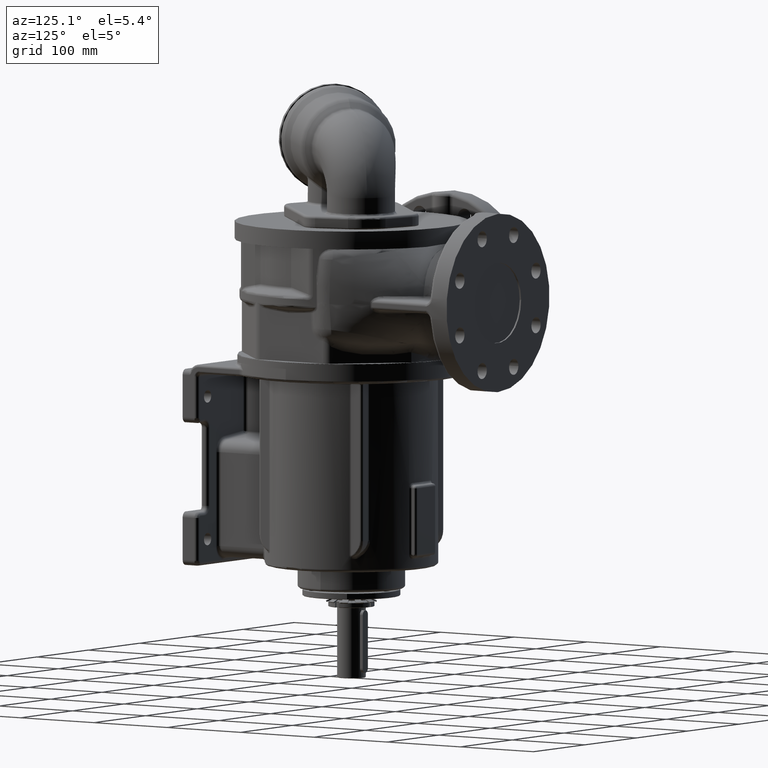
[diagram: clean part render]
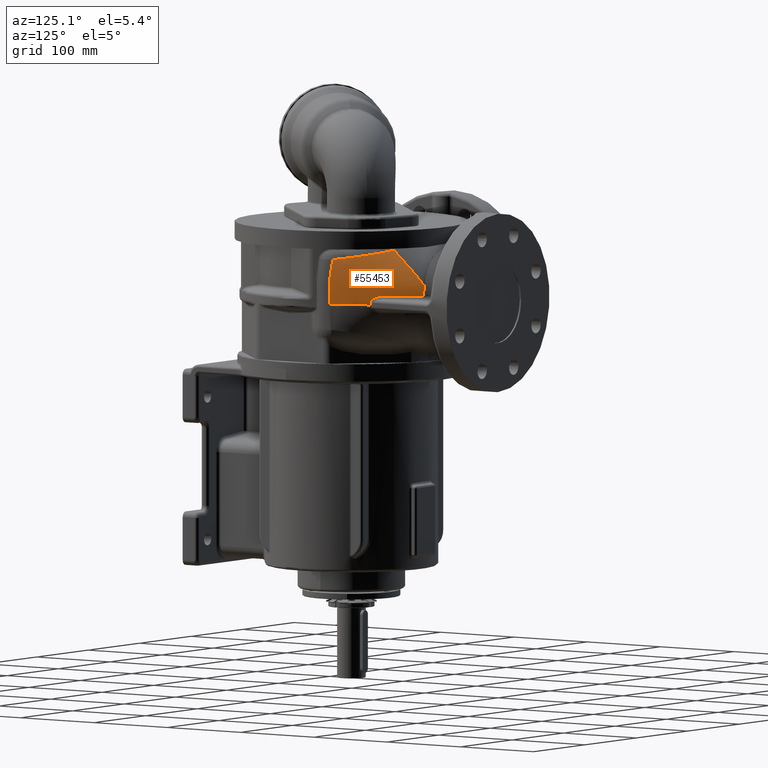
[diagram: same view with one face highlighted and labeled with its STEP entity id]
A machine part, auxiliary view. The second image highlights one B-rep face of the part: STEP entity #55453.
In plain terms, the highlighted face is a freeform B-spline surface patch.
Its self-contained STEP definition (entity closure, byte-faithful):
#13168=CARTESIAN_POINT('',(9.267260146083E1,1.084775637548E2,8.573123280410E1));
#13169=CARTESIAN_POINT('',(9.280640041249E1,1.082793639427E2,8.573289558268E1));
#13170=CARTESIAN_POINT('',(9.307361346264E1,1.078828800166E2,8.572946446688E1));
#13171=CARTESIAN_POINT('',(9.347425168137E1,1.072863117141E2,8.570384179694E1));
#13172=CARTESIAN_POINT('',(9.387132651865E1,1.066927858649E2,8.565802008869E1));
#13173=CARTESIAN_POINT('',(9.426284407056E1,1.061052066991E2,8.559244989972E1));
#13174=CARTESIAN_POINT('',(9.464651828633E1,1.055269629116E2,8.550798788147E1));
#13175=CARTESIAN_POINT('',(9.502021075235E1,1.049612974591E2,8.540575439214E1));
#13176=CARTESIAN_POINT('',(9.538162073928E1,1.044117731731E2,8.528728064472E1));
#13177=CARTESIAN_POINT('',(9.572938903105E1,1.038805979599E2,8.515416102022E1));
#13178=CARTESIAN_POINT('',(9.606351585828E1,1.033679435729E2,8.500753596663E1));
#13179=CARTESIAN_POINT('',(9.638373868650E1,1.028743963597E2,8.484864403735E1));
#13180=CARTESIAN_POINT('',(9.668961159288E1,1.024008501496E2,8.467883793254E1));
#13181=CARTESIAN_POINT('',(9.698076588891E1,1.019481015954E2,8.449951104724E1));
#13182=CARTESIAN_POINT('',(9.725720040410E1,1.015163866562E2,8.431192008259E1));
#13183=CARTESIAN_POINT('',(9.751894878634E1,1.011058974495E2,8.411723548164E1));
#13184=CARTESIAN_POINT('',(9.776614692070E1,1.007166582795E2,8.391666629417E1));
#13185=CARTESIAN_POINT('',(9.799895489811E1,1.003486607686E2,8.371130546825E1));
#13186=CARTESIAN_POINT('',(9.821766531451E1,1.000016739999E2,8.350221399288E1));
#13187=CARTESIAN_POINT('',(9.842266250082E1,9.967531227920E1,8.329031981367E1));
#13188=CARTESIAN_POINT('',(9.861435141064E1,9.936914428627E1,8.307648429686E1));
#13189=CARTESIAN_POINT('',(9.879319598119E1,9.908262686148E1,8.286150062212E1));
#13190=CARTESIAN_POINT('',(9.895968056706E1,9.881516810613E1,8.264608999003E1));
#13191=CARTESIAN_POINT('',(9.911432730664E1,9.856609873296E1,8.243086599206E1));
#13192=CARTESIAN_POINT('',(9.925766996359E1,9.833471311647E1,8.221635979768E1));
#13193=CARTESIAN_POINT('',(9.939028466871E1,9.812021666993E1,8.200302007849E1));
#13194=CARTESIAN_POINT('',(9.951274440467E1,9.792180643791E1,8.179114397187E1));
#13195=CARTESIAN_POINT('',(9.962558872527E1,9.773871524060E1,8.158103699418E1));
#13196=CARTESIAN_POINT('',(9.972936528189E1,9.757014714195E1,8.137291633770E1));
#13197=CARTESIAN_POINT('',(9.982457022091E1,9.741537991333E1,8.116693071423E1));
#13198=CARTESIAN_POINT('',(9.991171920710E1,9.727364261409E1,8.096318778483E1));
#13199=CARTESIAN_POINT('',(9.999127108641E1,9.714425034767E1,8.076171560249E1));
#13200=CARTESIAN_POINT('',(1.000636777521E2,9.702651697965E1,8.056251783858E1));
#13201=CARTESIAN_POINT('',(1.001293547348E2,9.691980895067E1,8.036553399838E1));
#13202=CARTESIAN_POINT('',(1.001886683109E2,9.682356590901E1,8.017072555334E1));
#13203=CARTESIAN_POINT('',(1.002419770735E2,9.673723267313E1,7.997799665341E1));
#13204=CARTESIAN_POINT('',(1.002895925280E2,9.666032861116E1,7.978719779121E1));
#13205=CARTESIAN_POINT('',(1.003318287682E2,9.659236125274E1,7.959813064678E1));
#13206=CARTESIAN_POINT('',(1.003689123080E2,9.653298167525E1,7.941065897539E1));
#13207=CARTESIAN_POINT('',(1.004010742585E2,9.648182618907E1,7.922465190649E1));
#13208=CARTESIAN_POINT('',(1.004285054443E2,9.643859695065E1,7.903990710979E1));
#13209=CARTESIAN_POINT('',(1.004513850229E2,9.640301451025E1,7.885607808483E1));
#13210=CARTESIAN_POINT('',(1.004698356113E2,9.637488729090E1,7.867304463966E1));
#13211=CARTESIAN_POINT('',(1.004839153266E2,9.635412537069E1,7.849107921041E1));
#13212=CARTESIAN_POINT('',(1.004937410929E2,9.634053948591E1,7.831013676089E1));
#13213=CARTESIAN_POINT('',(1.004974688329E2,9.633624106181E1,7.819082339075E1));
#13214=CARTESIAN_POINT('',(1.004986621970E2,9.633522245550E1,7.813143779149E1));
#13216=CARTESIAN_POINT('',(1.004986864613E2,9.633518988012E1,7.813089632989E1));
#13217=CARTESIAN_POINT('',(1.005034375679E2,9.633113611587E1,7.789443373549E1));
#13218=CARTESIAN_POINT('',(1.005113619471E2,9.632435389216E1,7.742182488618E1));
#13219=CARTESIAN_POINT('',(1.005185224510E2,9.631825414941E1,7.671089840123E1));
#13220=CARTESIAN_POINT('',(1.005201007586E2,9.631689067711E1,7.623681215635E1));
#13221=CARTESIAN_POINT('',(1.005201009278E2,9.631689021755E1,7.600000551866E1));
#13223=CARTESIAN_POINT('',(1.187827763862E2,5.351176780480E1,7.599999412507E1));
#13224=CARTESIAN_POINT('',(1.187827783616E2,5.351176403621E1,7.682682328106E1));
#13225=CARTESIAN_POINT('',(1.187832041686E2,5.351313266914E1,7.840256948280E1));
#13226=CARTESIAN_POINT('',(1.187849167121E2,5.351857730148E1,8.050644479321E1));
#13227=CARTESIAN_POINT('',(1.187870914894E2,5.352631919429E1,8.240623313163E1));
#13228=CARTESIAN_POINT('',(1.187892892393E2,5.353598046861E1,8.412526947656E1));
#13229=CARTESIAN_POINT('',(1.187912194840E2,5.354714123346E1,8.568666717379E1));
#13230=CARTESIAN_POINT('',(1.187927193843E2,5.355945158052E1,8.710687177183E1));
#13231=CARTESIAN_POINT('',(1.187936484179E2,5.357264865877E1,8.840030186032E1));
#13232=CARTESIAN_POINT('',(1.187939643960E2,5.358648689628E1,8.957966102447E1));
#13233=CARTESIAN_POINT('',(1.187936710823E2,5.360074126836E1,9.065598456947E1));
#13234=CARTESIAN_POINT('',(1.187928038028E2,5.361521013426E1,9.163862942081E1));
#13235=CARTESIAN_POINT('',(1.187914136999E2,5.362973208507E1,9.253698414316E1));
#13236=CARTESIAN_POINT('',(1.187895674064E2,5.364419351360E1,9.335995546207E1));
#13237=CARTESIAN_POINT('',(1.187873548824E2,5.365842807870E1,9.411262168416E1));
#13238=CARTESIAN_POINT('',(1.187847879635E2,5.367241262696E1,9.480346143836E1));
#13239=CARTESIAN_POINT('',(1.187821386384E2,5.368569750929E1,9.542654799786E1));
#13240=CARTESIAN_POINT('',(1.187785073319E2,5.369968383413E1,9.602944464671E1));
#13241=CARTESIAN_POINT('',(1.187722767143E2,5.371783076630E1,9.672575646545E1));
#13242=CARTESIAN_POINT('',(1.187634785261E2,5.373991401788E1,9.749242088541E1));
#13243=CARTESIAN_POINT('',(1.187512425574E2,5.376678642008E1,9.834374938633E1));
#13244=CARTESIAN_POINT('',(1.187343829380E2,5.379979325654E1,9.927636736146E1));
#13245=CARTESIAN_POINT('',(1.187120094327E2,5.383972021298E1,1.003030673788E2));
#13246=CARTESIAN_POINT('',(1.186824059180E2,5.388880578106E1,1.014356634230E2));
#13247=CARTESIAN_POINT('',(1.186436277708E2,5.394871418276E1,1.026879823200E2));
#13248=CARTESIAN_POINT('',(1.185926877425E2,5.402271809762E1,1.040788050397E2));
#13249=CARTESIAN_POINT('',(1.185260716331E2,5.411430292E1,1.056278420083E2));
#13250=CARTESIAN_POINT('',(1.184385645625E2,5.422839677129E1,1.073620357700E2));
#13251=CARTESIAN_POINT('',(1.183229737019E2,5.437167075892E1,1.093114581901E2));
#13252=CARTESIAN_POINT('',(1.181686077950E2,5.455377538888E1,1.115274223431E2));
#13253=CARTESIAN_POINT('',(1.179590215231E2,5.478833008922E1,1.140565034765E2));
#13254=CARTESIAN_POINT('',(1.177109510734E2,5.505174165165E1,1.165817049836E2));
#13255=CARTESIAN_POINT('',(1.174353221912E2,5.533089064053E1,1.190008991917E2));
#13256=CARTESIAN_POINT('',(1.171307910095E2,5.562605721038E1,1.213404830673E2));
#13257=CARTESIAN_POINT('',(1.167984145145E2,5.593451484541E1,1.236037458182E2));
#13258=CARTESIAN_POINT('',(1.165582744790E2,5.614921354992E1,1.250624337088E2));
#13259=CARTESIAN_POINT('',(1.164342887413E2,5.625743706910E1,1.257791064688E2));
#13261=CARTESIAN_POINT('',(1.164342887413E2,5.625743706910E1,1.257791064688E2));
#13262=CARTESIAN_POINT('',(1.161322590718E2,5.696136786196E1,1.258657024825E2));
#13263=CARTESIAN_POINT('',(1.155166846907E2,5.835919396173E1,1.260409566192E2));
#13264=CARTESIAN_POINT('',(1.145589233286E2,6.042572389747E1,1.263087204958E2));
#13265=CARTESIAN_POINT('',(1.135668966506E2,6.246285005444E1,1.265815291742E2));
#13266=CARTESIAN_POINT('',(1.125406339706E2,6.447111439719E1,1.268589971644E2));
#13267=CARTESIAN_POINT('',(1.114801874402E2,6.645101814800E1,1.271408742711E2));
#13268=CARTESIAN_POINT('',(1.103856771424E2,6.840287249122E1,1.274266752187E2));
#13269=CARTESIAN_POINT('',(1.092572578301E2,7.032669736175E1,1.277161103749E2));
#13270=CARTESIAN_POINT('',(1.080953735438E2,7.222211824887E1,1.280087029945E2));
#13271=CARTESIAN_POINT('',(1.068999773148E2,7.408951463025E1,1.283043100579E2));
#13272=CARTESIAN_POINT('',(1.056706850212E2,7.592976516244E1,1.286026585900E2));
#13273=CARTESIAN_POINT('',(1.044076182881E2,7.774280622681E1,1.289035802365E2));
#13274=CARTESIAN_POINT('',(1.031110372172E2,7.952849887516E1,1.292066318724E2));
#13275=CARTESIAN_POINT('',(1.017822503092E2,8.128514648680E1,1.295113251937E2));
#13276=CARTESIAN_POINT('',(1.004221989338E2,8.301168938921E1,1.298174299008E2));
#13277=CARTESIAN_POINT('',(9.903120308357E1,8.470793213001E1,1.301249019249E2));
#13278=CARTESIAN_POINT('',(9.760906996163E1,8.637432224380E1,1.304337161964E2));
#13279=CARTESIAN_POINT('',(9.615546106152E1,8.801132391262E1,1.307439715100E2));
#13280=CARTESIAN_POINT('',(9.467045638158E1,8.961890840390E1,1.310556072896E2));
#13281=CARTESIAN_POINT('',(9.315476620493E1,9.119633595549E1,1.313683834038E2));
#13282=CARTESIAN_POINT('',(9.161204811393E1,9.273994040273E1,1.316817120868E2));
#13283=CARTESIAN_POINT('',(9.004022442666E1,9.425197359405E1,1.319962485954E2));
#13284=CARTESIAN_POINT('',(8.843913164124E1,9.573259988271E1,1.323119219079E2));
#13285=CARTESIAN_POINT('',(8.681493137539E1,9.717623190729E1,1.326276490243E2));
#13286=CARTESIAN_POINT('',(8.516854620864E1,9.858249281375E1,1.329435890014E2));
#13287=CARTESIAN_POINT('',(8.349579542824E1,9.995512090373E1,1.332607148214E2));
#13288=CARTESIAN_POINT('',(8.180064564913E1,1.012909827613E2,1.335781526726E2));
#13289=CARTESIAN_POINT('',(8.008690001769E1,1.025873986229E2,1.338954491735E2));
#13290=CARTESIAN_POINT('',(7.835227902332E1,1.038463974466E2,1.342132118056E2));
#13291=CARTESIAN_POINT('',(7.659830973074E1,1.050671283978E2,1.345311875235E2));
#13292=CARTESIAN_POINT('',(7.482819774680E1,1.062475512557E2,1.348489332245E2));
#13293=CARTESIAN_POINT('',(7.304722535937E1,1.073849441085E2,1.351657867325E2));
#13294=CARTESIAN_POINT('',(7.182977167422E1,1.081289265286E2,1.353800939317E2));
#13295=CARTESIAN_POINT('',(7.121527664171E1,1.084959754064E2,1.354876407266E2));
#13297=CARTESIAN_POINT('',(6.361099333308E1,1.429232622299E2,8.548618228624E1));
#13298=CARTESIAN_POINT('',(6.354505243085E1,1.429107666869E2,8.590782955479E1));
#13299=CARTESIAN_POINT('',(6.340453381515E1,1.428841231472E2,8.674864577574E1));
#13300=CARTESIAN_POINT('',(6.316796794650E1,1.428394075698E2,8.800259717703E1));
#13301=CARTESIAN_POINT('',(6.290590777972E1,1.427900912048E2,8.924809496695E1));
#13302=CARTESIAN_POINT('',(6.261911928514E1,1.427363818678E2,9.048247955494E1));
#13303=CARTESIAN_POINT('',(6.230602991220E1,1.426781315215E2,9.171209808261E1));
#13304=CARTESIAN_POINT('',(6.196701870664E1,1.426151226050E2,9.293562648947E1));
#13305=CARTESIAN_POINT('',(6.160289662893E1,1.425474331157E2,9.415040433602E1));
#13306=CARTESIAN_POINT('',(6.121350797174E1,1.424755402879E2,9.535578345736E1));
#13307=CARTESIAN_POINT('',(6.093652545844E1,1.424235644337E2,9.615761213115E1));
#13308=CARTESIAN_POINT('',(6.079333534446E1,1.423971148182E2,9.655727812377E1));
#13310=CARTESIAN_POINT('',(6.361099333308E1,1.429232622299E2,8.548618228624E1));
#13311=CARTESIAN_POINT('',(6.450788312695E1,1.420644388935E2,8.549008313401E1));
#13312=CARTESIAN_POINT('',(6.622739238111E1,1.403884878527E2,8.549795116578E1));
#13313=CARTESIAN_POINT('',(6.863998674167E1,1.379572363216E2,8.551120903706E1));
#13314=CARTESIAN_POINT('',(7.075970515146E1,1.357552911695E2,8.552414441866E1));
#13315=CARTESIAN_POINT('',(7.274332679809E1,1.336375544283E2,8.553747080613E1));
#13316=CARTESIAN_POINT('',(7.461122846248E1,1.315893229440E2,8.555104804212E1));
#13317=CARTESIAN_POINT('',(7.639920847918E1,1.295775766953E2,8.556498506112E1));
#13318=CARTESIAN_POINT('',(7.812002713094E1,1.275921859689E2,8.557920049568E1));
#13319=CARTESIAN_POINT('',(7.980587806233E1,1.255970976982E2,8.559386835184E1));
#13320=CARTESIAN_POINT('',(8.139853846461E1,1.236662394632E2,8.560831042903E1));
#13321=CARTESIAN_POINT('',(8.313216223167E1,1.215114301321E2,8.562458059060E1));
#13322=CARTESIAN_POINT('',(8.496173947161E1,1.191718984336E2,8.564286923481E1));
#13323=CARTESIAN_POINT('',(8.680293073709E1,1.167473724300E2,8.566237300232E1));
#13324=CARTESIAN_POINT('',(8.870655040742E1,1.141627220598E2,8.568361518878E1));
#13325=CARTESIAN_POINT('',(9.067197769681E1,1.114043500123E2,8.570665206782E1));
#13326=CARTESIAN_POINT('',(9.200205695170E1,1.094708581966E2,8.572290265351E1));
#13327=CARTESIAN_POINT('',(9.267247971577E1,1.084777441436E2,8.573123825410E1));
#13545=CARTESIAN_POINT('',(1.187827763862E2,5.351176780480E1,7.599999412507E1));
#13547=CARTESIAN_POINT('',(1.005201009278E2,9.631689021755E1,7.600000551866E1));
#13548=CARTESIAN_POINT('',(1.009434972698E2,9.556988694694E1,7.600000744600E1));
#13549=CARTESIAN_POINT('',(1.025236880721E2,9.274124099110E1,7.600002158209E1));
#13550=CARTESIAN_POINT('',(1.051786507687E2,8.771612094522E1,7.599993851268E1));
#13551=CARTESIAN_POINT('',(1.094265842060E2,7.894555556831E1,7.600004912587E1));
#13552=CARTESIAN_POINT('',(1.132538648689E2,6.984211759335E1,7.599998263378E1));
#13553=CARTESIAN_POINT('',(1.165864325859E2,6.054499343395E1,7.599998690565E1));
#13554=CARTESIAN_POINT('',(1.180806187805E2,5.585714714329E1,7.599999757237E1));
#13555=CARTESIAN_POINT('',(1.187827763862E2,5.351176780480E1,7.599999412507E1));
#13557=CARTESIAN_POINT('',(1.005201009278E2,9.631689021755E1,7.600000551866E1));
#14316=CARTESIAN_POINT('',(6.079077790067E1,1.423971414944E2,9.656315205364E1));
#14317=CARTESIAN_POINT('',(6.085328223673E1,1.422629420538E2,9.675911470880E1));
#14318=CARTESIAN_POINT('',(6.099200093819E1,1.419626502102E2,9.719502320652E1));
#14319=CARTESIAN_POINT('',(6.124953482391E1,1.413871791422E2,9.801926750035E1));
#14320=CARTESIAN_POINT('',(6.153182105958E1,1.407332512990E2,9.894168958010E1));
#14321=CARTESIAN_POINT('',(6.182769593725E1,1.400240699665E2,9.992335520031E1));
#14322=CARTESIAN_POINT('',(6.211924994372E1,1.392991706782E2,1.009090961932E2));
#14323=CARTESIAN_POINT('',(6.238349385849E1,1.386190773853E2,1.018188503287E2));
#14324=CARTESIAN_POINT('',(6.260710432877E1,1.380292607267E2,1.025950286193E2));
#14325=CARTESIAN_POINT('',(6.279669749995E1,1.375150139574E2,1.032653941739E2));
#14326=CARTESIAN_POINT('',(6.296201575483E1,1.370561821149E2,1.038595056452E2));
#14327=CARTESIAN_POINT('',(6.312317480661E1,1.366184883374E2,1.044115525151E2));
#14328=CARTESIAN_POINT('',(6.328952446276E1,1.361656644357E2,1.049760476945E2));
#14329=CARTESIAN_POINT('',(6.347657377403E1,1.356384761619E2,1.056367393911E2));
#14330=CARTESIAN_POINT('',(6.368678109328E1,1.350401109544E2,1.063776307380E2));
#14331=CARTESIAN_POINT('',(6.389661415111E1,1.344334483092E2,1.071223601194E2));
#14332=CARTESIAN_POINT('',(6.410431699492E1,1.338224985172E2,1.078668640518E2));
#14333=CARTESIAN_POINT('',(6.431050061205E1,1.332046472302E2,1.086144970239E2));
#14334=CARTESIAN_POINT('',(6.452312279325E1,1.325570645406E2,1.093919094395E2));
#14335=CARTESIAN_POINT('',(6.474289633439E1,1.318768622448E2,1.102014500608E2));
#14336=CARTESIAN_POINT('',(6.495686608568E1,1.312036719445E2,1.109961494552E2));
#14337=CARTESIAN_POINT('',(6.516488304465E1,1.305387640036E2,1.117751732023E2));
#14338=CARTESIAN_POINT('',(6.537675086840E1,1.298511708589E2,1.125748146406E2));
#14339=CARTESIAN_POINT('',(6.559378727559E1,1.291361141198E2,1.134001164454E2));
#14340=CARTESIAN_POINT('',(6.581511132291E1,1.283962607906E2,1.142475130009E2));
#14341=CARTESIAN_POINT('',(6.604057447428E1,1.276318288554E2,1.151163661303E2));
#14342=CARTESIAN_POINT('',(6.627007016736E1,1.268429385678E2,1.160062281384E2));
#14343=CARTESIAN_POINT('',(6.650283689030E1,1.260322332847E2,1.169138668686E2));
#14344=CARTESIAN_POINT('',(6.673840288287E1,1.252016962879E2,1.178369342238E2));
#14345=CARTESIAN_POINT('',(6.697917243840E1,1.243431995649E2,1.187842880211E2));
#14346=CARTESIAN_POINT('',(6.722644259237E1,1.234522842661E2,1.197605254295E2));
#14347=CARTESIAN_POINT('',(6.747836900076E1,1.225357933724E2,1.207579559299E2));
#14348=CARTESIAN_POINT('',(6.773421518202E1,1.215969529619E2,1.217730061964E2));
#14349=CARTESIAN_POINT('',(6.799399264353E1,1.206366831346E2,1.228045902614E2));
#14350=CARTESIAN_POINT('',(6.825867750490E1,1.196524894268E2,1.238553631073E2));
#14351=CARTESIAN_POINT('',(6.853097448190E1,1.186351746353E2,1.249350920507E2));
#14352=CARTESIAN_POINT('',(6.880905081528E1,1.175918518274E2,1.260364235581E2));
#14353=CARTESIAN_POINT('',(6.909219219880E1,1.165261931976E2,1.271555069869E2));
#14354=CARTESIAN_POINT('',(6.936440555835E1,1.154976653371E2,1.282311528415E2));
#14355=CARTESIAN_POINT('',(6.960377059594E1,1.145861493678E2,1.291829114649E2));
#14356=CARTESIAN_POINT('',(6.982580612279E1,1.137366824836E2,1.300687470379E2));
#14357=CARTESIAN_POINT('',(7.004762271243E1,1.128894387436E2,1.309502880898E2));
#14358=CARTESIAN_POINT('',(7.030137692641E1,1.119241814626E2,1.319520294472E2));
#14359=CARTESIAN_POINT('',(7.059668043529E1,1.108078813797E2,1.331069295863E2));
#14360=CARTESIAN_POINT('',(7.091014953412E1,1.096302801206E2,1.343217231341E2));
#14361=CARTESIAN_POINT('',(7.111386490520E1,1.088716867804E2,1.351018702294E2));
#14362=CARTESIAN_POINT('',(7.121527664171E1,1.084959754064E2,1.354876407266E2));
#14794=CARTESIAN_POINT('',(6.079333534446E1,1.423971148182E2,9.655727812377E1));
#14795=CARTESIAN_POINT('',(6.079289633142E1,1.423975563247E2,9.655717513292E1));
#14796=CARTESIAN_POINT('',(6.079260304464E1,1.423977565947E2,9.655736282060E1));
#14797=CARTESIAN_POINT('',(6.079237267040E1,1.423974672532E2,9.655862677273E1));
#14798=CARTESIAN_POINT('',(6.079211942082E1,1.423973765824E2,9.655944677268E1));
#14799=CARTESIAN_POINT('',(6.079177375823E1,1.423973147522E2,9.656040612656E1));
#14800=CARTESIAN_POINT('',(6.079143632508E1,1.423972463776E2,9.656136237092E1));
#14801=CARTESIAN_POINT('',(6.079110696703E1,1.423971816624E2,9.656229464533E1));
#14802=CARTESIAN_POINT('',(6.079083012047E1,1.423972068264E2,9.656286485925E1));
#14803=CARTESIAN_POINT('',(6.079077790067E1,1.423971414944E2,9.656315205364E1));
#22900=VERTEX_POINT('',#13545);
#22901=VERTEX_POINT('',#13259);
#22921=CARTESIAN_POINT('',(6.079310066424E1,1.423973074356E2,9.655734409729E1));
#22922=VERTEX_POINT('',#22921);
#22923=VERTEX_POINT('',#14316);
#22924=VERTEX_POINT('',#14362);
#23164=VERTEX_POINT('',#13310);
#23165=VERTEX_POINT('',#13327);
#23167=VERTEX_POINT('',#13557);
#23170=VERTEX_POINT('',#13216);
#54833=CARTESIAN_POINT('',(6.384928515524E1,1.435387862351E2,7.519993052010E1));
#54834=CARTESIAN_POINT('',(6.384757892108E1,1.435573365207E2,7.633564415233E1));
#54835=CARTESIAN_POINT('',(6.379361655975E1,1.435757330666E2,7.831143854022E1));
#54836=CARTESIAN_POINT('',(6.352216370252E1,1.435657821191E2,8.201670667828E1));
#54837=CARTESIAN_POINT('',(6.295062402032E1,1.434881568502E2,8.627715267396E1));
#54838=CARTESIAN_POINT('',(6.186118689608E1,1.432885333038E2,9.132082570927E1));
#54839=CARTESIAN_POINT('',(6.062511262491E1,1.430340530923E2,9.542379250261E1));
#54840=CARTESIAN_POINT('',(5.944593465971E1,1.427773272197E2,9.863147656430E1));
#54841=CARTESIAN_POINT('',(5.863151762751E1,1.425944795027E2,1.006009481831E2));
#54842=CARTESIAN_POINT('',(5.793467114324E1,1.424344526963E2,1.021538834021E2));
#54843=CARTESIAN_POINT('',(5.738929792273E1,1.423076173864E2,1.033069495060E2));
#54844=CARTESIAN_POINT('',(5.691673303204E1,1.421971484017E2,1.042551986104E2));
#54845=CARTESIAN_POINT('',(5.652754786019E1,1.421040799152E2,1.050100570483E2));
#54846=CARTESIAN_POINT('',(5.623025723908E1,1.420337091715E2,1.055705689532E2));
#54847=CARTESIAN_POINT('',(5.593237506263E1,1.419686991081E2,1.061100053629E2));
#54848=CARTESIAN_POINT('',(5.553395528357E1,1.418778690242E2,1.068235682217E2));
#54849=CARTESIAN_POINT('',(5.502848584413E1,1.417485087214E2,1.077238382199E2));
#54850=CARTESIAN_POINT('',(5.441224203620E1,1.415809566379E2,1.087912065654E2));
#54851=CARTESIAN_POINT('',(5.357998484950E1,1.413356459479E2,1.102045750949E2));
#54852=CARTESIAN_POINT('',(5.251618848875E1,1.409850177517E2,1.119589391075E2));
#54853=CARTESIAN_POINT('',(5.120477733678E1,1.405013132061E2,1.140271449712E2));
#54854=CARTESIAN_POINT('',(4.986093795399E1,1.399520854491E2,1.160589550017E2));
#54855=CARTESIAN_POINT('',(4.802652155473E1,1.391342246144E2,1.187147487062E2));
#54856=CARTESIAN_POINT('',(4.566049711535E1,1.379554807088E2,1.219225648740E2));
#54857=CARTESIAN_POINT('',(4.272241290460E1,1.363073988572E2,1.255686357076E2));
#54858=CARTESIAN_POINT('',(3.970472413098E1,1.344456972591E2,1.289947092922E2));
#54859=CARTESIAN_POINT('',(3.662650239535E1,1.323944474425E2,1.321905680400E2));
#54860=CARTESIAN_POINT('',(3.230368694202E1,1.293221731551E2,1.362944793968E2));
#54861=CARTESIAN_POINT('',(2.896989110480E1,1.267485909011E2,1.390315231939E2));
#54862=CARTESIAN_POINT('',(2.668501921827E1,1.249075978020E2,1.407382862989E2));
#54863=CARTESIAN_POINT('',(6.534925775885E1,1.420961335856E2,7.521501016751E1));
#54864=CARTESIAN_POINT('',(6.534679457327E1,1.421147640577E2,7.632910617371E1));
#54865=CARTESIAN_POINT('',(6.529449501199E1,1.421339595176E2,7.826906717307E1));
#54866=CARTESIAN_POINT('',(6.503631969812E1,1.421273150340E2,8.190615954471E1));
#54867=CARTESIAN_POINT('',(6.449544959756E1,1.420561584784E2,8.609043576027E1));
#54868=CARTESIAN_POINT('',(6.346672046895E1,1.418683501954E2,9.104780847272E1));
#54869=CARTESIAN_POINT('',(6.230046621322E1,1.416269053498E2,9.508620441317E1));
#54870=CARTESIAN_POINT('',(6.118814039863E1,1.413825078742E2,9.824764365358E1));
#54871=CARTESIAN_POINT('',(6.041991839208E1,1.412081561380E2,1.001908136331E2));
#54872=CARTESIAN_POINT('',(5.976258701372E1,1.410554538709E2,1.017242937655E2));
#54873=CARTESIAN_POINT('',(5.924814638365E1,1.409343955358E2,1.028635611845E2));
#54874=CARTESIAN_POINT('',(5.880233488031E1,1.408287897046E2,1.038013680503E2));
#54875=CARTESIAN_POINT('',(5.843518634362E1,1.407399131885E2,1.045480408700E2));
#54876=CARTESIAN_POINT('',(5.815476419483E1,1.406727459420E2,1.051025789234E2));
#54877=CARTESIAN_POINT('',(5.787367226489E1,1.406102741863E2,1.056373688909E2));
#54878=CARTESIAN_POINT('',(5.749747924188E1,1.405229024547E2,1.063453767235E2));
#54879=CARTESIAN_POINT('',(5.701986970105E1,1.403988011458E2,1.072387512916E2));
#54880=CARTESIAN_POINT('',(5.643724886440E1,1.402383762770E2,1.082982300834E2));
#54881=CARTESIAN_POINT('',(5.564979215097E1,1.400039974799E2,1.097015859643E2));
#54882=CARTESIAN_POINT('',(5.464210010101E1,1.396697676023E2,1.114445430532E2));
#54883=CARTESIAN_POINT('',(5.339806463715E1,1.392097907934E2,1.135011386968E2));
#54884=CARTESIAN_POINT('',(5.212129420316E1,1.386883697130E2,1.155238319003E2));
#54885=CARTESIAN_POINT('',(5.037580877946E1,1.379129678704E2,1.181708774615E2));
#54886=CARTESIAN_POINT('',(4.811930879836E1,1.367969508515E2,1.213749402930E2));
#54887=CARTESIAN_POINT('',(4.530823816634E1,1.352376885615E2,1.250293674579E2));
#54888=CARTESIAN_POINT('',(4.241146741974E1,1.334762266079E2,1.284770969337E2));
#54889=CARTESIAN_POINT('',(3.944662962276E1,1.315340672291E2,1.317077466126E2));
#54890=CARTESIAN_POINT('',(3.526893910858E1,1.286219904246E2,1.358768194480E2));
#54891=CARTESIAN_POINT('',(3.203012197701E1,1.261770170039E2,1.386817718786E2));
#54892=CARTESIAN_POINT('',(2.980287323016E1,1.244247886581E2,1.404407411961E2));
#54893=CARTESIAN_POINT('',(6.814104419218E1,1.393295591342E2,7.524321741194E1));
#54894=CARTESIAN_POINT('',(6.813857828640E1,1.393470435040E2,7.631685567338E1));
#54895=CARTESIAN_POINT('',(6.809177001379E1,1.393653297499E2,7.818987058216E1));
#54896=CARTESIAN_POINT('',(6.786248312616E1,1.393600461493E2,8.169943821242E1));
#54897=CARTESIAN_POINT('',(6.738308770110E1,1.392948842847E2,8.574138273409E1));
#54898=CARTESIAN_POINT('',(6.647186612861E1,1.391210819394E2,9.053746200920E1));
#54899=CARTESIAN_POINT('',(6.543869871070E1,1.388966249710E2,9.445521843725E1));
#54900=CARTESIAN_POINT('',(6.445293350026E1,1.386689392877E2,9.753026215697E1));
#54901=CARTESIAN_POINT('',(6.377187472543E1,1.385063317541E2,9.942427594552E1));
#54902=CARTESIAN_POINT('',(6.318894451380E1,1.383638780525E2,1.009214105871E2));
#54903=CARTESIAN_POINT('',(6.273266762116E1,1.382509519256E2,1.020349167227E2));
#54904=CARTESIAN_POINT('',(6.233711658867E1,1.381522070836E2,1.029531734772E2));
#54905=CARTESIAN_POINT('',(6.201132860959E1,1.380693131688E2,1.036845470023E2));
#54906=CARTESIAN_POINT('',(6.176252848106E1,1.380066555669E2,1.042280417682E2));
#54907=CARTESIAN_POINT('',(6.151288475731E1,1.379474464436E2,1.047544495053E2));
#54908=CARTESIAN_POINT('',(6.117834018200E1,1.378646342825E2,1.054523609277E2));
#54909=CARTESIAN_POINT('',(6.075298867171E1,1.377481157560E2,1.063327916375E2));
#54910=CARTESIAN_POINT('',(6.023338457406E1,1.375981586739E2,1.073776513318E2));
#54911=CARTESIAN_POINT('',(5.952988301200E1,1.373803085313E2,1.087624248317E2));
#54912=CARTESIAN_POINT('',(5.862737467561E1,1.370718337129E2,1.104838701290E2));
#54913=CARTESIAN_POINT('',(5.750967301955E1,1.366500748801E2,1.125184478319E2));
#54914=CARTESIAN_POINT('',(5.635876436212E1,1.361743849006E2,1.145234784305E2));
#54915=CARTESIAN_POINT('',(5.478032965908E1,1.354698311267E2,1.171530358459E2));
#54916=CARTESIAN_POINT('',(5.272995220816E1,1.344601184064E2,1.203481512159E2));
#54917=CARTESIAN_POINT('',(5.015875706947E1,1.330535120587E2,1.240152419353E2));
#54918=CARTESIAN_POINT('',(4.749134047825E1,1.314659861671E2,1.275001380541E2));
#54919=CARTESIAN_POINT('',(4.474263966044E1,1.297143903179E2,1.307924635720E2));
#54920=CARTESIAN_POINT('',(4.084316680406E1,1.270835551892E2,1.350789180326E2));
#54921=CARTESIAN_POINT('',(3.778830437827E1,1.248657422458E2,1.380081052117E2));
#54922=CARTESIAN_POINT('',(3.567346712893E1,1.232704830664E2,1.398633313291E2));
#54923=CARTESIAN_POINT('',(7.218190334652E1,1.350898291161E2,7.528308129717E1));
#54924=CARTESIAN_POINT('',(7.218174623598E1,1.351031694259E2,7.629949881861E1));
#54925=CARTESIAN_POINT('',(7.214647874552E1,1.351154461331E2,7.807805355276E1));
#54926=CARTESIAN_POINT('',(7.196403420547E1,1.351024931942E2,8.140726804697E1));
#54927=CARTESIAN_POINT('',(7.157691321611E1,1.350335549471E2,8.524815628997E1));
#54928=CARTESIAN_POINT('',(7.083566411992E1,1.348632184715E2,8.981612294344E1));
#54929=CARTESIAN_POINT('',(6.999172685436E1,1.346478618658E2,9.356316285774E1));
#54930=CARTESIAN_POINT('',(6.918449884426E1,1.344310246665E2,9.651583367834E1));
#54931=CARTESIAN_POINT('',(6.862592572660E1,1.342766941463E2,9.834010508841E1));
#54932=CARTESIAN_POINT('',(6.814728411867E1,1.341418116233E2,9.978567569033E1));
#54933=CARTESIAN_POINT('',(6.777240314218E1,1.340350287521E2,1.008626592315E2));
#54934=CARTESIAN_POINT('',(6.744711956078E1,1.339415294630E2,1.017530238038E2));
#54935=CARTESIAN_POINT('',(6.717908876199E1,1.338633807693E2,1.024626343089E2));
#54936=CARTESIAN_POINT('',(6.697436358617E1,1.338041431693E2,1.029907505999E2));
#54937=CARTESIAN_POINT('',(6.676847104636E1,1.337466599232E2,1.035060570367E2));
#54938=CARTESIAN_POINT('',(6.649190333082E1,1.336665940248E2,1.041903993127E2));
#54939=CARTESIAN_POINT('',(6.613944841039E1,1.335563796060E2,1.050522835883E2));
#54940=CARTESIAN_POINT('',(6.570762516710E1,1.334155884428E2,1.060767731757E2));
#54941=CARTESIAN_POINT('',(6.512103998019E1,1.332133324345E2,1.074356566161E2));
#54942=CARTESIAN_POINT('',(6.436513579477E1,1.329313954694E2,1.091262811217E2));
#54943=CARTESIAN_POINT('',(6.342354854473E1,1.325511213408E2,1.111291945162E2));
#54944=CARTESIAN_POINT('',(6.244833049938E1,1.321271290741E2,1.131080080673E2));
#54945=CARTESIAN_POINT('',(6.110344085285E1,1.315048199704E2,1.157105079672E2));
#54946=CARTESIAN_POINT('',(5.934207921369E1,1.306219428542E2,1.188888843023E2));
#54947=CARTESIAN_POINT('',(5.710907753376E1,1.294019882592E2,1.225672947516E2));
#54948=CARTESIAN_POINT('',(5.476721822475E1,1.280307279827E2,1.260970148515E2));
#54949=CARTESIAN_POINT('',(5.232771391753E1,1.265190554395E2,1.294683072193E2));
#54950=CARTESIAN_POINT('',(4.882977149568E1,1.242459058163E2,1.339092403491E2));
#54951=CARTESIAN_POINT('',(4.604464324237E1,1.223210717601E2,1.370060689273E2));
#54952=CARTESIAN_POINT('',(4.409630743463E1,1.209293272209E2,1.389930236012E2));
#54953=CARTESIAN_POINT('',(7.539240987022E1,1.315317235611E2,7.531320097987E1));
#54954=CARTESIAN_POINT('',(7.539467828752E1,1.315409228059E2,7.628639994912E1));
#54955=CARTESIAN_POINT('',(7.536913282671E1,1.315466840654E2,7.799369695363E1));
#54956=CARTESIAN_POINT('',(7.522326029850E1,1.315236918481E2,8.118656142443E1));
#54957=CARTESIAN_POINT('',(7.490617298559E1,1.314461967049E2,8.487551068403E1));
#54958=CARTESIAN_POINT('',(7.429202373295E1,1.312705415760E2,8.927078274300E1));
#54959=CARTESIAN_POINT('',(7.358855718652E1,1.310546516026E2,9.288838036025E1));
#54960=CARTESIAN_POINT('',(7.291339217899E1,1.308396162188E2,9.574810403464E1));
#54961=CARTESIAN_POINT('',(7.244526164097E1,1.306873651447E2,9.751928293860E1));
#54962=CARTESIAN_POINT('',(7.204353168603E1,1.305547345158E2,9.892557623722E1));
#54963=CARTESIAN_POINT('',(7.172862829299E1,1.304499081162E2,9.997474298119E1));
#54964=CARTESIAN_POINT('',(7.145510390016E1,1.303581504630E2,1.008437274009E2));
#54965=CARTESIAN_POINT('',(7.122958906159E1,1.302817266384E2,1.015366939701E2));
#54966=CARTESIAN_POINT('',(7.105726076512E1,1.302235992514E2,1.020532787036E2));
#54967=CARTESIAN_POINT('',(7.088347062875E1,1.301660456252E2,1.025606807888E2));
#54968=CARTESIAN_POINT('',(7.064946457095E1,1.300863019782E2,1.032352238502E2));
#54969=CARTESIAN_POINT('',(7.035063333224E1,1.299787098256E2,1.040828543099E2));
#54970=CARTESIAN_POINT('',(6.998330950059E1,1.298421045429E2,1.050921244399E2));
#54971=CARTESIAN_POINT('',(6.948261501872E1,1.296478068852E2,1.064317098420E2));
#54972=CARTESIAN_POINT('',(6.883450934433E1,1.293809716844E2,1.080987957777E2));
#54973=CARTESIAN_POINT('',(6.802244939074E1,1.290256480524E2,1.100775569510E2));
#54974=CARTESIAN_POINT('',(6.717660435404E1,1.286340057543E2,1.120359000737E2));
#54975=CARTESIAN_POINT('',(6.600391885392E1,1.280644158192E2,1.146166962921E2));
#54976=CARTESIAN_POINT('',(6.445618690608E1,1.272648205004E2,1.177801581943E2));
#54977=CARTESIAN_POINT('',(6.247429414627E1,1.261700726448E2,1.214632908925E2));
#54978=CARTESIAN_POINT('',(6.037548998373E1,1.249460822143E2,1.250221955098E2));
#54979=CARTESIAN_POINT('',(5.816828099125E1,1.235997831390E2,1.284479236105E2));
#54980=CARTESIAN_POINT('',(5.497413151695E1,1.215757874582E2,1.329979111657E2));
#54981=CARTESIAN_POINT('',(5.239568459935E1,1.198582969206E2,1.362154824293E2));
#54982=CARTESIAN_POINT('',(5.057588606810E1,1.186117656327E2,1.382984983182E2));
#54983=CARTESIAN_POINT('',(7.796216195483E1,1.285590634731E2,7.533591069520E1));
#54984=CARTESIAN_POINT('',(7.796604814348E1,1.285651922878E2,7.627652001293E1));
#54985=CARTESIAN_POINT('',(7.794735704076E1,1.285660337173E2,7.793007817752E1));
#54986=CARTESIAN_POINT('',(7.782781381475E1,1.285351682633E2,8.101995632014E1));
#54987=CARTESIAN_POINT('',(7.756154352472E1,1.284504770097E2,8.459410148844E1));
#54988=CARTESIAN_POINT('',(7.703997913907E1,1.282693866994E2,8.885861650540E1));
#54989=CARTESIAN_POINT('',(7.643902165970E1,1.280515604804E2,9.237797694709E1));
#54990=CARTESIAN_POINT('',(7.586029880473E1,1.278364803059E2,9.516699010833E1));
#54991=CARTESIAN_POINT('',(7.545824081790E1,1.276848593838E2,9.689767529881E1));
#54992=CARTESIAN_POINT('',(7.511270714108E1,1.275531359506E2,9.827397028170E1));
#54993=CARTESIAN_POINT('',(7.484162774586E1,1.274491648118E2,9.930187609958E1));
#54994=CARTESIAN_POINT('',(7.460593265399E1,1.273582172235E2,1.001544367083E2));
#54995=CARTESIAN_POINT('',(7.441148978907E1,1.272826593357E2,1.008346266640E2));
#54996=CARTESIAN_POINT('',(7.426282044798E1,1.272250239001E2,1.013424732535E2));
#54997=CARTESIAN_POINT('',(7.411244486027E1,1.271671526793E2,1.018441174551E2));
#54998=CARTESIAN_POINT('',(7.390949138280E1,1.270873296284E2,1.025114533634E2));
#54999=CARTESIAN_POINT('',(7.364984463633E1,1.269812877411E2,1.033481194328E2));
#55000=CARTESIAN_POINT('',(7.332962360177E1,1.268472738593E2,1.043459230503E2));
#55001=CARTESIAN_POINT('',(7.289165042793E1,1.266581457590E2,1.056710119151E2));
#55002=CARTESIAN_POINT('',(7.232232858976E1,1.264015463169E2,1.073201261484E2));
#55003=CARTESIAN_POINT('',(7.160496469810E1,1.260634494667E2,1.092805026232E2));
#55004=CARTESIAN_POINT('',(7.085379497512E1,1.256944470483E2,1.112230389702E2));
#55005=CARTESIAN_POINT('',(6.980725555660E1,1.251620352491E2,1.137868232400E2));
#55006=CARTESIAN_POINT('',(6.841629051330E1,1.244216453022E2,1.169379322911E2));
#55007=CARTESIAN_POINT('',(6.661923035015E1,1.234166607857E2,1.206227485968E2));
#55008=CARTESIAN_POINT('',(6.469997306158E1,1.222990034626E2,1.242013095122E2));
#55009=CARTESIAN_POINT('',(6.266505899314E1,1.210729552893E2,1.276653505186E2));
#55010=CARTESIAN_POINT('',(5.969724020200E1,1.192314128005E2,1.322933720834E2));
#55011=CARTESIAN_POINT('',(5.727401325054E1,1.176675705401E2,1.355984402102E2));
#55012=CARTESIAN_POINT('',(5.555117181829E1,1.165295083954E2,1.377516524535E2));
#55013=CARTESIAN_POINT('',(7.989281008148E1,1.262598703263E2,7.535217170724E1));
#55014=CARTESIAN_POINT('',(7.989759298694E1,1.262640224627E2,7.626943209245E1));
#55015=CARTESIAN_POINT('',(7.988330138036E1,1.262616865567E2,7.788446982017E1));
#55016=CARTESIAN_POINT('',(7.978150053760E1,1.262256916688E2,8.090045457611E1));
#55017=CARTESIAN_POINT('',(7.955008487462E1,1.261362548913E2,8.439218586816E1));
#55018=CARTESIAN_POINT('',(7.909259199202E1,1.259515172336E2,8.856267966818E1));
#55019=CARTESIAN_POINT('',(7.856287424372E1,1.257323590467E2,9.201126032946E1));
#55020=CARTESIAN_POINT('',(7.805130007931E1,1.255172231587E2,9.474922183842E1));
#55021=CARTESIAN_POINT('',(7.769528925791E1,1.253660177010E2,9.645061190048E1));
#55022=CARTESIAN_POINT('',(7.738894103242E1,1.252349027343E2,9.780517646506E1));
#55023=CARTESIAN_POINT('',(7.714842835504E1,1.251315046097E2,9.881766858634E1));
#55024=CARTESIAN_POINT('',(7.693912949523E1,1.250411119127E2,9.965828115656E1));
#55025=CARTESIAN_POINT('',(7.676637072404E1,1.249661415668E2,1.003291770026E2));
#55026=CARTESIAN_POINT('',(7.663420599722E1,1.249088303679E2,1.008307171118E2));
#55027=CARTESIAN_POINT('',(7.650015161652E1,1.248507495984E2,1.013283138934E2));
#55028=CARTESIAN_POINT('',(7.631884781612E1,1.247709056697E2,1.019905522514E2));
#55029=CARTESIAN_POINT('',(7.608655013123E1,1.246659954218E2,1.028192337153E2));
#55030=CARTESIAN_POINT('',(7.579919484671E1,1.245338487324E2,1.038087987788E2));
#55031=CARTESIAN_POINT('',(7.540498640385E1,1.243484058371E2,1.051234952534E2));
#55032=CARTESIAN_POINT('',(7.489067283189E1,1.240990595771E2,1.067595925152E2));
#55033=CARTESIAN_POINT('',(7.423945047324E1,1.237731245949E2,1.087066831835E2));
#55034=CARTESIAN_POINT('',(7.355445713178E1,1.234200881720E2,1.106376936481E2));
#55035=CARTESIAN_POINT('',(7.259615788843E1,1.229138719415E2,1.131889598288E2));
#55036=CARTESIAN_POINT('',(7.131499103024E1,1.222151937590E2,1.163306778186E2));
#55037=CARTESIAN_POINT('',(6.964765643866E1,1.212735544188E2,1.200157963637E2));
#55038=CARTESIAN_POINT('',(6.785471477090E1,1.202311323190E2,1.236073033450E2));
#55039=CARTESIAN_POINT('',(6.594133381324E1,1.190904780199E2,1.270974498437E2));
#55040=CARTESIAN_POINT('',(6.313361623310E1,1.173790470663E2,1.317792763561E2));
#55041=CARTESIAN_POINT('',(6.082074037637E1,1.159256202164E2,1.351451918517E2));
#55042=CARTESIAN_POINT('',(5.916700510344E1,1.148659675287E2,1.373474959548E2));
#55043=CARTESIAN_POINT('',(8.150662349976E1,1.242800065172E2,7.536504799800E1));
#55044=CARTESIAN_POINT('',(8.151174928536E1,1.242829789515E2,7.626384555825E1));
#55045=CARTESIAN_POINT('',(8.150026088258E1,1.242787620224E2,7.784839475213E1));
#55046=CARTESIAN_POINT('',(8.141112382868E1,1.242397543058E2,8.080584057095E1));
#55047=CARTESIAN_POINT('',(8.120552485046E1,1.241475944459E2,8.423223233616E1));
#55048=CARTESIAN_POINT('',(8.079634764794E1,1.239609703780E2,8.832803884682E1));
#55049=CARTESIAN_POINT('',(8.032079707240E1,1.237414540929E2,9.172025397292E1));
#55050=CARTESIAN_POINT('',(7.986046452537E1,1.235267802153E2,9.441745771510E1));
#55051=CARTESIAN_POINT('',(7.953965566983E1,1.233762067352E2,9.609540428353E1));
#55052=CARTESIAN_POINT('',(7.926329543778E1,1.232458107007E2,9.743254963508E1));
#55053=CARTESIAN_POINT('',(7.904618847213E1,1.231430407456E2,9.843267180549E1));
#55054=CARTESIAN_POINT('',(7.885711515152E1,1.230532398761E2,9.926366234006E1));
#55055=CARTESIAN_POINT('',(7.870097672878E1,1.229788494187E2,9.992707071235E1));
#55056=CARTESIAN_POINT('',(7.858145959664E1,1.229218829255E2,1.004235649052E2));
#55057=CARTESIAN_POINT('',(7.845990368066E1,1.228637671203E2,1.009180040920E2));
#55058=CARTESIAN_POINT('',(7.829518216613E1,1.227840886044E2,1.015762432594E2));
#55059=CARTESIAN_POINT('',(7.808385539470E1,1.226802723483E2,1.023984867049E2));
#55060=CARTESIAN_POINT('',(7.782169705247E1,1.225498393034E2,1.033814924854E2));
#55061=CARTESIAN_POINT('',(7.746104477961E1,1.223676067490E2,1.046879346753E2));
#55062=CARTESIAN_POINT('',(7.698893932069E1,1.221243227023E2,1.063135948895E2));
#55063=CARTESIAN_POINT('',(7.638849079307E1,1.218083497605E2,1.082500585318E2));
#55064=CARTESIAN_POINT('',(7.575433815596E1,1.214682385464E2,1.101717727826E2));
#55065=CARTESIAN_POINT('',(7.486388157041E1,1.209830797409E2,1.127128587517E2));
#55066=CARTESIAN_POINT('',(7.366723339190E1,1.203177403188E2,1.158467116097E2));
#55067=CARTESIAN_POINT('',(7.209993844029E1,1.194266121588E2,1.195313514646E2));
#55068=CARTESIAN_POINT('',(7.040459227542E1,1.184442194771E2,1.231321913755E2));
#55069=CARTESIAN_POINT('',(6.858529392820E1,1.173718883506E2,1.266418935387E2));
#55070=CARTESIAN_POINT('',(6.590174836108E1,1.157649673665E2,1.313645261720E2));
#55071=CARTESIAN_POINT('',(6.367471357496E1,1.144009219948E2,1.347769671783E2));
#55072=CARTESIAN_POINT('',(6.207476136948E1,1.134051726676E2,1.370169965278E2));
#55073=CARTESIAN_POINT('',(8.280201281546E1,1.226536723839E2,7.537489167828E1));
#55074=CARTESIAN_POINT('',(8.280708801602E1,1.226561171986E2,7.625956090804E1));
#55075=CARTESIAN_POINT('',(8.279716611819E1,1.226511100840E2,7.782075432534E1));
#55076=CARTESIAN_POINT('',(8.271655254958E1,1.226109685375E2,8.073332873069E1));
#55077=CARTESIAN_POINT('',(8.252922736085E1,1.225180313984E2,8.410959529116E1));
#55078=CARTESIAN_POINT('',(8.215505799667E1,1.223314544564E2,8.814800424609E1));
#55079=CARTESIAN_POINT('',(8.171918321939E1,1.221128600693E2,9.149679789745E1));
#55080=CARTESIAN_POINT('',(8.129657084088E1,1.218994779663E2,9.416252656123E1));
#55081=CARTESIAN_POINT('',(8.100174047194E1,1.217499693891E2,9.582232937595E1));
#55082=CARTESIAN_POINT('',(8.074754575400E1,1.216205866418E2,9.714596983312E1));
#55083=CARTESIAN_POINT('',(8.054775496186E1,1.215186434334E2,9.813648952064E1));
#55084=CARTESIAN_POINT('',(8.037365883152E1,1.214295869636E2,9.895999060228E1));
#55085=CARTESIAN_POINT('',(8.022983505955E1,1.213558698511E2,9.961756644565E1));
#55086=CARTESIAN_POINT('',(8.011968970238E1,1.212993422405E2,1.001101455255E2));
#55087=CARTESIAN_POINT('',(8.000739068467E1,1.212414010165E2,1.006021758789E2));
#55088=CARTESIAN_POINT('',(7.985495238899E1,1.211621205304E2,1.012573533683E2));
#55089=CARTESIAN_POINT('',(7.965917407670E1,1.210594590263E2,1.020745775009E2));
#55090=CARTESIAN_POINT('',(7.941569865503E1,1.209307204414E2,1.030525110955E2));
#55091=CARTESIAN_POINT('',(7.907993228974E1,1.207514446055E2,1.043525805920E2));
#55092=CARTESIAN_POINT('',(7.863915326295E1,1.205133953465E2,1.059701306471E2));
#55093=CARTESIAN_POINT('',(7.807641310240E1,1.202057336286E2,1.078983449894E2));
#55094=CARTESIAN_POINT('',(7.748005222625E1,1.198761711777E2,1.098127960031E2));
#55095=CARTESIAN_POINT('',(7.664007059590E1,1.194079660820E2,1.123458732020E2));
#55096=CARTESIAN_POINT('',(7.550639257843E1,1.187691360219E2,1.154733875457E2));
#55097=CARTESIAN_POINT('',(7.401378877744E1,1.179178345981E2,1.191571695868E2));
#55098=CARTESIAN_POINT('',(7.239147452253E1,1.169825982884E2,1.227645522905E2));
#55099=CARTESIAN_POINT('',(7.064275092734E1,1.159638998554E2,1.262885128882E2));
#55100=CARTESIAN_POINT('',(6.805258857470E1,1.144390952115E2,1.310412622055E2));
#55101=CARTESIAN_POINT('',(6.589039651063E1,1.131455277066E2,1.344883223464E2));
#55102=CARTESIAN_POINT('',(6.433116115507E1,1.122003828915E2,1.367565646148E2));
#55103=CARTESIAN_POINT('',(8.409777250070E1,1.210014034573E2,7.538446421319E1));
#55104=CARTESIAN_POINT('',(8.410270035936E1,1.210034532746E2,7.625540798682E1));
#55105=CARTESIAN_POINT('',(8.409404270943E1,1.209979715365E2,7.779388942680E1));
#55106=CARTESIAN_POINT('',(8.402097035100E1,1.209575297559E2,8.066282356698E1));
#55107=CARTESIAN_POINT('',(8.385017685487E1,1.208651191322E2,8.399031896223E1));
#55108=CARTESIAN_POINT('',(8.350806650606E1,1.206805513161E2,8.797283113859E1));
#55109=CARTESIAN_POINT('',(8.310879348081E1,1.204647220040E2,9.127927722229E1));
#55110=CARTESIAN_POINT('',(8.272113723137E1,1.202541535353E2,9.391425810871E1));
#55111=CARTESIAN_POINT('',(8.245044600251E1,1.201066646288E2,9.555630864363E1));
#55112=CARTESIAN_POINT('',(8.221688738505E1,1.199790518492E2,9.686671791332E1));
#55113=CARTESIAN_POINT('',(8.203323809647E1,1.198784971020E2,9.784782033350E1));
#55114=CARTESIAN_POINT('',(8.187312092841E1,1.197906490183E2,9.866396156319E1));
#55115=CARTESIAN_POINT('',(8.174080152819E1,1.197179679146E2,9.931580235284E1));
#55116=CARTESIAN_POINT('',(8.163941475111E1,1.196621535277E2,9.980453944696E1));
#55117=CARTESIAN_POINT('',(8.153576467041E1,1.196046866431E2,1.002942233785E2));
#55118=CARTESIAN_POINT('',(8.139480425592E1,1.195261986796E2,1.009464096701E2));
#55119=CARTESIAN_POINT('',(8.121356806962E1,1.194251435098E2,1.017586830078E2));
#55120=CARTESIAN_POINT('',(8.098757326743E1,1.192986252538E2,1.027316318260E2));
#55121=CARTESIAN_POINT('',(8.067510216958E1,1.191229660795E2,1.040254399549E2));
#55122=CARTESIAN_POINT('',(8.026368281656E1,1.188908794551E2,1.056349871892E2));
#55123=CARTESIAN_POINT('',(7.973634016011E1,1.185922653488E2,1.075550471343E2));
#55124=CARTESIAN_POINT('',(7.917552659100E1,1.182738305885E2,1.094622720193E2));
#55125=CARTESIAN_POINT('',(7.838313289670E1,1.178231312032E2,1.119873166627E2));
#55126=CARTESIAN_POINT('',(7.730906027554E1,1.172110765450E2,1.151083029675E2));
#55127=CARTESIAN_POINT('',(7.588764548275E1,1.163992170167E2,1.187907079911E2));
#55128=CARTESIAN_POINT('',(7.433554738506E1,1.155100441230E2,1.224038268337E2));
#55129=CARTESIAN_POINT('',(7.265541953054E1,1.145432001753E2,1.259409815373E2));
#55130=CARTESIAN_POINT('',(7.015724398961E1,1.130971372093E2,1.307221170238E2));
#55131=CARTESIAN_POINT('',(6.806065013920E1,1.118704595372E2,1.342023236852E2));
#55132=CARTESIAN_POINT('',(6.654361651669E1,1.109730698342E2,1.364979421652E2));
#55133=CARTESIAN_POINT('',(8.571206716445E1,1.188939549336E2,7.539594449451E1));
#55134=CARTESIAN_POINT('',(8.571682139799E1,1.188955130839E2,7.625042482707E1));
#55135=CARTESIAN_POINT('',(8.570966504189E1,1.188894363349E2,7.776161094695E1));
#55136=CARTESIAN_POINT('',(8.564553420188E1,1.188486083269E2,8.057811456213E1));
#55137=CARTESIAN_POINT('',(8.549433571181E1,1.187568396874E2,8.384698641181E1));
#55138=CARTESIAN_POINT('',(8.519021544420E1,1.185747646618E2,8.776225988924E1));
#55139=CARTESIAN_POINT('',(8.483430933382E1,1.183623961831E2,9.101769204739E1));
#55140=CARTESIAN_POINT('',(8.448806496619E1,1.181553699025E2,9.361557355786E1));
#55141=CARTESIAN_POINT('',(8.424596949266E1,1.180104312126E2,9.523617158092E1));
#55142=CARTESIAN_POINT('',(8.403685584651E1,1.178850581777E2,9.653057194936E1));
#55143=CARTESIAN_POINT('',(8.387232584799E1,1.177862633460E2,9.750026992158E1));
#55144=CARTESIAN_POINT('',(8.372876743804E1,1.176999534455E2,9.830747751273E1));
#55145=CARTESIAN_POINT('',(8.361007440712E1,1.176285850831E2,9.895235506455E1));
#55146=CARTESIAN_POINT('',(8.351906009134E1,1.175736872333E2,9.943644239082E1));
#55147=CARTESIAN_POINT('',(8.342565764258E1,1.175168924164E2,9.992331630489E1));
#55148=CARTESIAN_POINT('',(8.329830362020E1,1.174394960026E2,1.005719068017E2));
#55149=CARTESIAN_POINT('',(8.313431602521E1,1.173405068725E2,1.013781526207E2));
#55150=CARTESIAN_POINT('',(8.292906493048E1,1.172168299134E2,1.023450731667E2));
#55151=CARTESIAN_POINT('',(8.264425356824E1,1.170457356827E2,1.036313242987E2));
#55152=CARTESIAN_POINT('',(8.226772721318E1,1.168210423707E2,1.052311747834E2));
#55153=CARTESIAN_POINT('',(8.178250135109E1,1.165335390820E2,1.071413763293E2));
#55154=CARTESIAN_POINT('',(8.126403796176E1,1.162286629883E2,1.090398332747E2));
#55155=CARTESIAN_POINT('',(8.052841153509E1,1.157991810795E2,1.115550998330E2));
#55156=CARTESIAN_POINT('',(7.952558798991E1,1.152194123692E2,1.146680383689E2));
#55157=CARTESIAN_POINT('',(7.818953440562E1,1.144549339923E2,1.183484147591E2));
#55158=CARTESIAN_POINT('',(7.672193000836E1,1.136210019892E2,1.219679040579E2));
#55159=CARTESIAN_POINT('',(7.512468315386E1,1.127163294748E2,1.255202274156E2));
#55160=CARTESIAN_POINT('',(7.273816304003E1,1.113647270518E2,1.303343056543E2));
#55161=CARTESIAN_POINT('',(7.072186994040E1,1.102184491528E2,1.338532047864E2));
#55162=CARTESIAN_POINT('',(6.925683833043E1,1.093785950991E2,1.361809199416E2));
#55163=CARTESIAN_POINT('',(8.828099785479E1,1.154305407336E2,7.541323472185E1));
#55164=CARTESIAN_POINT('',(8.828537739446E1,1.154314805730E2,7.624294788445E1));
#55165=CARTESIAN_POINT('',(8.828022680713E1,1.154247522588E2,7.771294322677E1));
#55166=CARTESIAN_POINT('',(8.822889018788E1,1.153838940411E2,8.045037630911E1));
#55167=CARTESIAN_POINT('',(8.810613599330E1,1.152938841253E2,8.363075558141E1));
#55168=CARTESIAN_POINT('',(8.785751310539E1,1.151167442772E2,8.744440448852E1));
#55169=CARTESIAN_POINT('',(8.756515337368E1,1.149107795646E2,9.062254051265E1));
#55170=CARTESIAN_POINT('',(8.727968120851E1,1.147101714711E2,9.316405517044E1));
#55171=CARTESIAN_POINT('',(8.707958467569E1,1.145698056738E2,9.475197711866E1));
#55172=CARTESIAN_POINT('',(8.690639365511E1,1.144484257589E2,9.602193975667E1));
#55173=CARTESIAN_POINT('',(8.676996786807E1,1.143527633297E2,9.697420033321E1));
#55174=CARTESIAN_POINT('',(8.665076001168E1,1.142691916603E2,9.776770432986E1));
#55175=CARTESIAN_POINT('',(8.655210837174E1,1.142001375779E2,9.840189196409E1));
#55176=CARTESIAN_POINT('',(8.647635106745E1,1.141468941063E2,9.887885926086E1));
#55177=CARTESIAN_POINT('',(8.639803915367E1,1.140914747212E2,9.936146480024E1));
#55178=CARTESIAN_POINT('',(8.629073655649E1,1.140162113415E2,1.000045693876E2));
#55179=CARTESIAN_POINT('',(8.615218396224E1,1.139208608922E2,1.008015122864E2));
#55180=CARTESIAN_POINT('',(8.597755288984E1,1.138021245935E2,1.017591870032E2));
#55181=CARTESIAN_POINT('',(8.573361180947E1,1.136387690878E2,1.030338717685E2));
#55182=CARTESIAN_POINT('',(8.540872140186E1,1.134261993376E2,1.046188229817E2));
#55183=CARTESIAN_POINT('',(8.498594812447E1,1.131565581660E2,1.065138980704E2));
#55184=CARTESIAN_POINT('',(8.453041992597E1,1.128731317746E2,1.083988319074E2));
#55185=CARTESIAN_POINT('',(8.387933588842E1,1.124768491392E2,1.108989341129E2));
#55186=CARTESIAN_POINT('',(8.298298917110E1,1.119470385949E2,1.139991317173E2));
#55187=CARTESIAN_POINT('',(8.177516253671E1,1.112552247229E2,1.176754781126E2));
#55188=CARTESIAN_POINT('',(8.043522293595E1,1.105055898553E2,1.213033192606E2));
#55189=CARTESIAN_POINT('',(7.896403834059E1,1.096955721915E2,1.248769485406E2));
#55190=CARTESIAN_POINT('',(7.674861525422E1,1.084876663703E2,1.297381330399E2));
#55191=CARTESIAN_POINT('',(7.485704762314E1,1.074637676250E2,1.333129916620E2));
#55192=CARTESIAN_POINT('',(7.347365548283E1,1.067116850405E2,1.356874897788E2));
#55193=CARTESIAN_POINT('',(9.145452843615E1,1.109358581672E2,7.543277031163E1));
#55194=CARTESIAN_POINT('',(9.145834680936E1,1.109362447698E2,7.623453171215E1));
#55195=CARTESIAN_POINT('',(9.145515147221E1,1.109290761823E2,7.765776113525E1));
#55196=CARTESIAN_POINT('',(9.141743253858E1,1.108888733156E2,8.030557291572E1));
#55197=CARTESIAN_POINT('',(9.132546615573E1,1.108018817868E2,8.338546858969E1));
#55198=CARTESIAN_POINT('',(9.113733808873E1,1.106319465892E2,8.708347606140E1));
#55199=CARTESIAN_POINT('',(9.091448371472E1,1.104349699658E2,9.017324508561E1));
#55200=CARTESIAN_POINT('',(9.069559352827E1,1.102432941299E2,9.264999540805E1));
#55201=CARTESIAN_POINT('',(9.054155448135E1,1.101092677783E2,9.420020550395E1));
#55202=CARTESIAN_POINT('',(9.040778408788E1,1.099934180426E2,9.544184964232E1));
#55203=CARTESIAN_POINT('',(9.030220862174E1,1.099021005572E2,9.637384110082E1));
#55204=CARTESIAN_POINT('',(9.020974444235E1,1.098223366423E2,9.715133637706E1));
#55205=CARTESIAN_POINT('',(9.013310700454E1,1.097564757025E2,9.777301296807E1));
#55206=CARTESIAN_POINT('',(9.007411543744E1,1.097055820214E2,9.824165549042E1));
#55207=CARTESIAN_POINT('',(9.001243693325E1,1.096523666187E2,9.871927446093E1));
#55208=CARTESIAN_POINT('',(8.992726797201E1,1.095803871658E2,9.935593578399E1));
#55209=CARTESIAN_POINT('',(8.981680645353E1,1.094900777596E2,1.001418705506E2));
#55210=CARTESIAN_POINT('',(8.967607198396E1,1.093781116792E2,1.010886615880E2));
#55211=CARTESIAN_POINT('',(8.947746950809E1,1.092250677130E2,1.023497664359E2));
#55212=CARTESIAN_POINT('',(8.921001217186E1,1.090280076425E2,1.039171754151E2));
#55213=CARTESIAN_POINT('',(8.885697309868E1,1.087806691394E2,1.057944541980E2));
#55214=CARTESIAN_POINT('',(8.847198882030E1,1.085234611998E2,1.076633703565E2));
#55215=CARTESIAN_POINT('',(8.791602402314E1,1.081671659959E2,1.101453674732E2));
#55216=CARTESIAN_POINT('',(8.714017849072E1,1.076966196466E2,1.132298847543E2));
#55217=CARTESIAN_POINT('',(8.607868256292E1,1.070899576998E2,1.168998033465E2));
#55218=CARTESIAN_POINT('',(8.488575337178E1,1.064384543395E2,1.205347805998E2));
#55219=CARTESIAN_POINT('',(8.356118383348E1,1.057383270698E2,1.241296760408E2));
#55220=CARTESIAN_POINT('',(8.154690397338E1,1.046971575840E2,1.290395314749E2));
#55221=CARTESIAN_POINT('',(7.980473592527E1,1.038155109583E2,1.326734000329E2));
#55222=CARTESIAN_POINT('',(7.852053948163E1,1.031658753847E2,1.350978407019E2));
#55223=CARTESIAN_POINT('',(9.517369174325E1,1.052906209890E2,7.545277195855E1));
#55224=CARTESIAN_POINT('',(9.517667228448E1,1.052907830933E2,7.622596334501E1));
#55225=CARTESIAN_POINT('',(9.517493810368E1,1.052838557478E2,7.760087821713E1));
#55226=CARTESIAN_POINT('',(9.514984301416E1,1.052459205834E2,8.015646409533E1));
#55227=CARTESIAN_POINT('',(9.508742515064E1,1.051643564670E2,8.313258822584E1));
#55228=CARTESIAN_POINT('',(9.495819705978E1,1.050054060947E2,8.671074163238E1));
#55229=CARTESIAN_POINT('',(9.480350413669E1,1.048214031389E2,8.970813808186E1));
#55230=CARTESIAN_POINT('',(9.465015819862E1,1.046424164265E2,9.211656476794E1));
#55231=CARTESIAN_POINT('',(9.454155833776E1,1.045173236934E2,9.362668197926E1));
#55232=CARTESIAN_POINT('',(9.444674351204E1,1.044092396967E2,9.483799256167E1));
#55233=CARTESIAN_POINT('',(9.437168121910E1,1.043240286327E2,9.574814511461E1));
#55234=CARTESIAN_POINT('',(9.430569707907E1,1.042496148243E2,9.650827261360E1));
#55235=CARTESIAN_POINT('',(9.425086803191E1,1.041882071214E2,9.711632095246E1));
#55236=CARTESIAN_POINT('',(9.420851206073E1,1.041406871315E2,9.757582659421E1));
#55237=CARTESIAN_POINT('',(9.416345898608E1,1.040909430597E2,9.804777476135E1));
#55238=CARTESIAN_POINT('',(9.410047287448E1,1.040239538701E2,9.867708215810E1));
#55239=CARTESIAN_POINT('',(9.401815719352E1,1.039405972503E2,9.945071580272E1));
#55240=CARTESIAN_POINT('',(9.391156555079E1,1.038378450550E2,1.003852451353E2));
#55241=CARTESIAN_POINT('',(9.375882860318E1,1.036984089229E2,1.016310469207E2));
#55242=CARTESIAN_POINT('',(9.354974516510E1,1.035208583525E2,1.031787714876E2));
#55243=CARTESIAN_POINT('',(9.326812532877E1,1.033007166363E2,1.050359318487E2));
#55244=CARTESIAN_POINT('',(9.295589426512E1,1.030745807786E2,1.068865739793E2));
#55245=CARTESIAN_POINT('',(9.249869226198E1,1.027647220331E2,1.093476066861E2));
#55246=CARTESIAN_POINT('',(9.184925461827E1,1.023615018922E2,1.124130137146E2));
#55247=CARTESIAN_POINT('',(9.094341011285E1,1.018497877271E2,1.160723317664E2));
#55248=CARTESIAN_POINT('',(8.990912771122E1,1.013065308142E2,1.197100865592E2));
#55249=CARTESIAN_POINT('',(8.874520913569E1,1.007269796318E2,1.233215924643E2));
#55250=CARTESIAN_POINT('',(8.695485571559E1,9.986837889548E1,1.282733359197E2));
#55251=CARTESIAN_POINT('',(8.538343566226E1,9.914253852637E1,1.319607474588E2));
#55252=CARTESIAN_POINT('',(8.421484580926E1,9.860563177583E1,1.344316648967E2));
#55253=CARTESIAN_POINT('',(9.877590948059E1,9.940996283772E1,7.546936059639E1));
#55254=CARTESIAN_POINT('',(9.877790043369E1,9.941040045746E1,7.621895003514E1));
#55255=CARTESIAN_POINT('',(9.877681442280E1,9.940458838504E1,7.755338449411E1));
#55256=CARTESIAN_POINT('',(9.876092890138E1,9.937059781673E1,8.003216253993E1));
#55257=CARTESIAN_POINT('',(9.872126291599E1,9.929648082505E1,8.292142498738E1));
#55258=CARTESIAN_POINT('',(9.863835149163E1,9.915110092644E1,8.639878219878E1));
#55259=CARTESIAN_POINT('',(9.853781474152E1,9.898243238079E1,8.931757704154E1));
#55260=CARTESIAN_POINT('',(9.843683718112E1,9.881821675952E1,9.166714042892E1));
#55261=CARTESIAN_POINT('',(9.836465930692E1,9.870344101529E1,9.314236854750E1));
#55262=CARTESIAN_POINT('',(9.830114606209E1,9.860428790206E1,9.432701685637E1));
#55263=CARTESIAN_POINT('',(9.825063529568E1,9.852609821436E1,9.521782319133E1));
#55264=CARTESIAN_POINT('',(9.820599037128E1,9.845782638907E1,9.596245100188E1));
#55265=CARTESIAN_POINT('',(9.816875047660E1,9.840150615647E1,9.655826942569E1));
#55266=CARTESIAN_POINT('',(9.813984772370E1,9.835790608888E1,9.700943293979E1));
#55267=CARTESIAN_POINT('',(9.810838951861E1,9.831237546452E1,9.747580402906E1));
#55268=CARTESIAN_POINT('',(9.806361440944E1,9.825131312588E1,9.809787173119E1));
#55269=CARTESIAN_POINT('',(9.800438385870E1,9.817575052547E1,9.886001473481E1));
#55270=CARTESIAN_POINT('',(9.792602036912E1,9.808320133051E1,9.978280286812E1));
#55271=CARTESIAN_POINT('',(9.781144766036E1,9.795849352227E1,1.010138770999E2));
#55272=CARTESIAN_POINT('',(9.765125303212E1,9.780129645430E1,1.025428767711E2));
#55273=CARTESIAN_POINT('',(9.743009919184E1,9.760878443514E1,1.043805557871E2));
#55274=CARTESIAN_POINT('',(9.718004639080E1,9.741343283995E1,1.062133190842E2));
#55275=CARTESIAN_POINT('',(9.680801487813E1,9.714873633799E1,1.086534203792E2));
#55276=CARTESIAN_POINT('',(9.626904501480E1,9.680964335065E1,1.116985545185E2));
#55277=CARTESIAN_POINT('',(9.550156414210E1,9.638672933687E1,1.153435135668E2));
#55278=CARTESIAN_POINT('',(9.461070268617E1,9.594362969308E1,1.189775975465E2));
#55279=CARTESIAN_POINT('',(9.359449230099E1,9.547505060866E1,1.225963985794E2));
#55280=CARTESIAN_POINT('',(9.201350406450E1,9.478415064394E1,1.275733368390E2));
#55281=CARTESIAN_POINT('',(9.060593125981E1,9.420149806734E1,1.312973997993E2));
#55282=CARTESIAN_POINT('',(8.955032743235E1,9.376871494076E1,1.338017077383E2));
#55283=CARTESIAN_POINT('',(1.033881635542E2,9.128062145713E1,7.548701737734E1));
#55284=CARTESIAN_POINT('',(1.033886992223E2,9.128210407753E1,7.621155351269E1));
#55285=CARTESIAN_POINT('',(1.033875827144E2,9.127895943837E1,7.750221911591E1));
#55286=CARTESIAN_POINT('',(1.033800305077E2,9.125248454656E1,7.989866283674E1));
#55287=CARTESIAN_POINT('',(1.033627139332E2,9.119098419476E1,8.269414495877E1));
#55288=CARTESIAN_POINT('',(1.033266575476E2,9.106708564566E1,8.606198190736E1));
#55289=CARTESIAN_POINT('',(1.032816813089E2,9.092186943776E1,8.889399337475E1));
#55290=CARTESIAN_POINT('',(1.032348450626E2,9.077993061533E1,9.117748461508E1));
#55291=CARTESIAN_POINT('',(1.032004909285E2,9.068059652275E1,9.261304307601E1));
#55292=CARTESIAN_POINT('',(1.031695949001E2,9.059474893057E1,9.376698398902E1));
#55293=CARTESIAN_POINT('',(1.031447174218E2,9.052700859896E1,9.463528785867E1));
#55294=CARTESIAN_POINT('',(1.031224000116E2,9.046785758020E1,9.536173655072E1));
#55295=CARTESIAN_POINT('',(1.031035863236E2,9.041906589999E1,9.594311474548E1));
#55296=CARTESIAN_POINT('',(1.030888288692E2,9.038131246075E1,9.638416180820E1));
#55297=CARTESIAN_POINT('',(1.030718788136E2,9.034216705031E1,9.684301065451E1));
#55298=CARTESIAN_POINT('',(1.030466501341E2,9.028996132477E1,9.745531223988E1));
#55299=CARTESIAN_POINT('',(1.030121799626E2,9.022566814600E1,9.820309149517E1));
#55300=CARTESIAN_POINT('',(1.029644276073E2,9.014769254170E1,9.911061556093E1));
#55301=CARTESIAN_POINT('',(1.028916180279E2,9.004366137196E1,1.003223586845E2));
#55302=CARTESIAN_POINT('',(1.027854102542E2,8.991427058487E1,1.018271821180E2));
#55303=CARTESIAN_POINT('',(1.026320145594E2,8.975866659910E1,1.036390200720E2));
#55304=CARTESIAN_POINT('',(1.024525137149E2,8.960357812205E1,1.054477884125E2));
#55305=CARTESIAN_POINT('',(1.021782595155E2,8.939700398818E1,1.078591044128E2));
#55306=CARTESIAN_POINT('',(1.017682501289E2,8.913890157730E1,1.108745468449E2));
#55307=CARTESIAN_POINT('',(1.011656583388E2,8.882627921407E1,1.144942468116E2));
#55308=CARTESIAN_POINT('',(1.004490672603E2,8.850637003881E1,1.181140550473E2));
#55309=CARTESIAN_POINT('',(9.961570797106E1,8.817366334291E1,1.217297928272E2));
#55310=CARTESIAN_POINT('',(9.829851554549E1,8.768787775198E1,1.267181851851E2));
#55311=CARTESIAN_POINT('',(9.710278725741E1,8.728068220264E1,1.304695171877E2));
#55312=CARTESIAN_POINT('',(9.619580857918E1,8.697626737167E1,1.330018027438E2));
#55313=CARTESIAN_POINT('',(1.087355209175E2,8.062825833772E1,7.550120198428E1));
#55314=CARTESIAN_POINT('',(1.087341246405E2,8.063230629175E1,7.620581195658E1));
#55315=CARTESIAN_POINT('',(1.087316736371E2,8.063469182645E1,7.746010649849E1));
#55316=CARTESIAN_POINT('',(1.087283232500E2,8.062182680739E1,7.978960921005E1));
#55317=CARTESIAN_POINT('',(1.087260328047E2,8.058111797360E1,8.250742649750E1));
#55318=CARTESIAN_POINT('',(1.087241583720E2,8.049038061530E1,8.578312422965E1));
#55319=CARTESIAN_POINT('',(1.087211965289E2,8.037997345807E1,8.853926244109E1));
#55320=CARTESIAN_POINT('',(1.087160981459E2,8.027047838895E1,9.076277648650E1));
#55321=CARTESIAN_POINT('',(1.087112290700E2,8.019339187228E1,9.216130269767E1));
#55322=CARTESIAN_POINT('',(1.087059727256E2,8.012657302152E1,9.328579676708E1));
#55323=CARTESIAN_POINT('',(1.087013417661E2,8.007373515504E1,9.413208616078E1));
#55324=CARTESIAN_POINT('',(1.086967556662E2,8.002754285679E1,9.484046283320E1));
#55325=CARTESIAN_POINT('',(1.086926199187E2,7.998940453674E1,9.540731254943E1));
#55326=CARTESIAN_POINT('',(1.086892194922E2,7.995993800839E1,9.583757066018E1));
#55327=CARTESIAN_POINT('',(1.086843034997E2,7.992980948856E1,9.628661272694E1));
#55328=CARTESIAN_POINT('',(1.086755288473E2,7.988993123418E1,9.688616618943E1));
#55329=CARTESIAN_POINT('',(1.086619356512E2,7.984095395698E1,9.761761555738E1));
#55330=CARTESIAN_POINT('',(1.086406445224E2,7.978239448934E1,9.850638858595E1));
#55331=CARTESIAN_POINT('',(1.086047176775E2,7.970533799064E1,9.969390202607E1));
#55332=CARTESIAN_POINT('',(1.085472310511E2,7.961114349869E1,1.011692573946E2));
#55333=CARTESIAN_POINT('',(1.084569917230E2,7.950086210370E1,1.029479564320E2));
#55334=CARTESIAN_POINT('',(1.083450440573E2,7.939387739117E1,1.047253532014E2));
#55335=CARTESIAN_POINT('',(1.081667142075E2,7.925522944174E1,1.070975373188E2));
#55336=CARTESIAN_POINT('',(1.078875111533E2,7.908927861086E1,1.100690048658E2));
#55337=CARTESIAN_POINT('',(1.074588071527E2,7.889915108382E1,1.136437697019E2));
#55338=CARTESIAN_POINT('',(1.069324855111E2,7.871416692809E1,1.172267871374E2));
#55339=CARTESIAN_POINT('',(1.063051382634E2,7.852939749381E1,1.208141011335E2));
#55340=CARTESIAN_POINT('',(1.052937194447E2,7.826692593560E1,1.257755841372E2));
#55341=CARTESIAN_POINT('',(1.043533107556E2,7.805182975609E1,1.295222147009E2));
#55342=CARTESIAN_POINT('',(1.036299038244E2,7.788958221542E1,1.320601658367E2));
#55343=CARTESIAN_POINT('',(1.144579089005E2,6.692494663982E1,7.550825717633E1));
#55344=CARTESIAN_POINT('',(1.144547906268E2,6.693305248325E1,7.620325745492E1));
#55345=CARTESIAN_POINT('',(1.144505002475E2,6.694379271440E1,7.743754594980E1));
#55346=CARTESIAN_POINT('',(1.144473446044E2,6.695072070969E1,7.973266265517E1));
#55347=CARTESIAN_POINT('',(1.144508099684E2,6.693927316137E1,8.240797275662E1));
#55348=CARTESIAN_POINT('',(1.144648488154E2,6.689406097454E1,8.563063215286E1));
#55349=CARTESIAN_POINT('',(1.144829911154E2,6.683054505648E1,8.833809405238E1));
#55350=CARTESIAN_POINT('',(1.144997709588E2,6.676426798336E1,9.051946413295E1));
#55351=CARTESIAN_POINT('',(1.145107544726E2,6.671660151092E1,9.189028808493E1));
#55352=CARTESIAN_POINT('',(1.145195490166E2,6.667479965273E1,9.299156750260E1));
#55353=CARTESIAN_POINT('',(1.145261337364E2,6.664150555135E1,9.381986755873E1));
#55354=CARTESIAN_POINT('',(1.145315002839E2,6.661224982362E1,9.451297052307E1));
#55355=CARTESIAN_POINT('',(1.145356683401E2,6.658800563401E1,9.506738470622E1));
#55356=CARTESIAN_POINT('',(1.145387639754E2,6.656926563538E1,9.548737960755E1));
#55357=CARTESIAN_POINT('',(1.145411260092E2,6.655041919303E1,9.592376778291E1));
#55358=CARTESIAN_POINT('',(1.145427150545E2,6.652577066514E1,9.650669698649E1));
#55359=CARTESIAN_POINT('',(1.145426090624E2,6.649569015004E1,9.722032215811E1));
#55360=CARTESIAN_POINT('',(1.145392897954E2,6.646044058636E1,9.808623558235E1));
#55361=CARTESIAN_POINT('',(1.145296443764E2,6.641508407354E1,9.924331166261E1));
#55362=CARTESIAN_POINT('',(1.145086971085E2,6.636127292695E1,1.006827393145E2));
#55363=CARTESIAN_POINT('',(1.144688708580E2,6.630124907835E1,1.024181961290E2));
#55364=CARTESIAN_POINT('',(1.144136855358E2,6.624611773126E1,1.041536236999E2));
#55365=CARTESIAN_POINT('',(1.143195079512E2,6.617890907311E1,1.064710385372E2));
#55366=CARTESIAN_POINT('',(1.141615824622E2,6.610685596899E1,1.093757602079E2));
#55367=CARTESIAN_POINT('',(1.139041672979E2,6.603794879398E1,1.128730865453E2));
#55368=CARTESIAN_POINT('',(1.135749771851E2,6.598425830922E1,1.163814598264E2));
#55369=CARTESIAN_POINT('',(1.131704876513E2,6.594258236534E1,1.198975320070E2));
#55370=CARTESIAN_POINT('',(1.125024612533E2,6.589670178871E1,1.247672181408E2));
#55371=CARTESIAN_POINT('',(1.118631032995E2,6.587035537394E1,1.284552293512E2));
#55372=CARTESIAN_POINT('',(1.113626167900E2,6.585049673988E1,1.309609561052E2));
#55373=CARTESIAN_POINT('',(1.176408309040E2,5.741139894498E1,7.550791550048E1));
#55374=CARTESIAN_POINT('',(1.176376443978E2,5.742098198457E1,7.620367073665E1));
#55375=CARTESIAN_POINT('',(1.176333499785E2,5.743509684503E1,7.743693714927E1));
#55376=CARTESIAN_POINT('',(1.176303293766E2,5.745115894338E1,7.973260539801E1));
#55377=CARTESIAN_POINT('',(1.176341971815E2,5.745453282315E1,8.240571471931E1));
#55378=CARTESIAN_POINT('',(1.176493741129E2,5.743414087675E1,8.562288216506E1));
#55379=CARTESIAN_POINT('',(1.176693506296E2,5.739730176708E1,8.832044819757E1));
#55380=CARTESIAN_POINT('',(1.176884481674E2,5.735616047118E1,9.049011617796E1));
#55381=CARTESIAN_POINT('',(1.177013314986E2,5.732578600767E1,9.185187909841E1));
#55382=CARTESIAN_POINT('',(1.177119773247E2,5.729878081792E1,9.294473149638E1));
#55383=CARTESIAN_POINT('',(1.177201157124E2,5.727710001408E1,9.376609259056E1));
#55384=CARTESIAN_POINT('',(1.177269466210E2,5.725793718270E1,9.445286278922E1));
#55385=CARTESIAN_POINT('',(1.177323895817E2,5.724199862034E1,9.500211108241E1));
#55386=CARTESIAN_POINT('',(1.177365050626E2,5.722964716321E1,9.541717089003E1));
#55387=CARTESIAN_POINT('',(1.177402020801E2,5.721732057058E1,9.584509028066E1));
#55388=CARTESIAN_POINT('',(1.177440291770E2,5.720138519593E1,9.641667269741E1));
#55389=CARTESIAN_POINT('',(1.177472524847E2,5.718216191041E1,9.711969384250E1));
#55390=CARTESIAN_POINT('',(1.177489484460E2,5.716002039351E1,9.797069457186E1));
#55391=CARTESIAN_POINT('',(1.177475285781E2,5.713219135515E1,9.910741885861E1));
#55392=CARTESIAN_POINT('',(1.177394097632E2,5.710033264379E1,1.005232466189E2));
#55393=CARTESIAN_POINT('',(1.177192962948E2,5.706684125540E1,1.022287959660E2));
#55394=CARTESIAN_POINT('',(1.176882006804E2,5.703841852928E1,1.039346238117E2));
#55395=CARTESIAN_POINT('',(1.176319899116E2,5.700716869495E1,1.062121824765E2));
#55396=CARTESIAN_POINT('',(1.175328072635E2,5.698090395975E1,1.090659335054E2));
#55397=CARTESIAN_POINT('',(1.173645025011E2,5.696930049142E1,1.125003732097E2));
#55398=CARTESIAN_POINT('',(1.171436671107E2,5.697652189554E1,1.159442265303E2));
#55399=CARTESIAN_POINT('',(1.168672548374E2,5.700080834053E1,1.193948475674E2));
#55400=CARTESIAN_POINT('',(1.164041093307E2,5.705518722623E1,1.241745655618E2));
#55401=CARTESIAN_POINT('',(1.159530941409E2,5.711774695932E1,1.277979841261E2));
#55402=CARTESIAN_POINT('',(1.155961570563E2,5.716652105686E1,1.302634254263E2));
#55403=CARTESIAN_POINT('',(1.190933844916E2,5.246424434357E1,7.550679659720E1));
#55404=CARTESIAN_POINT('',(1.190905323978E2,5.247346289764E1,7.620425562439E1));
#55405=CARTESIAN_POINT('',(1.190867455731E2,5.248732099911E1,7.743935221609E1));
#55406=CARTESIAN_POINT('',(1.190842806361E2,5.250434793410E1,7.973970056159E1));
#55407=CARTESIAN_POINT('',(1.190882222838E2,5.251099259167E1,8.241662367657E1));
#55408=CARTESIAN_POINT('',(1.191027510068E2,5.249812385719E1,8.563666861590E1));
#55409=CARTESIAN_POINT('',(1.191217856290E2,5.247061857287E1,8.833357454769E1));
#55410=CARTESIAN_POINT('',(1.191400839582E2,5.243888218459E1,9.050055618328E1));
#55411=CARTESIAN_POINT('',(1.191525049595E2,5.241519104692E1,9.185961152143E1));
#55412=CARTESIAN_POINT('',(1.191628396063E2,5.239402202792E1,9.294964258126E1));
#55413=CARTESIAN_POINT('',(1.191707751720E2,5.237698122657E1,9.376855129734E1));
#55414=CARTESIAN_POINT('',(1.191774774065E2,5.236189406427E1,9.445290901277E1));
#55415=CARTESIAN_POINT('',(1.191828479926E2,5.234933463257E1,9.500021314599E1));
#55416=CARTESIAN_POINT('',(1.191869205335E2,5.233959535912E1,9.541322241474E1));
#55417=CARTESIAN_POINT('',(1.191906843294E2,5.232992368673E1,9.583689667928E1));
#55418=CARTESIAN_POINT('',(1.191948220078E2,5.231752487836E1,9.640270999279E1));
#55419=CARTESIAN_POINT('',(1.191987282295E2,5.230270752075E1,9.710060042602E1));
#55420=CARTESIAN_POINT('',(1.192017062696E2,5.228585714932E1,9.794413371086E1));
#55421=CARTESIAN_POINT('',(1.192027393472E2,5.226506551296E1,9.907057273521E1));
#55422=CARTESIAN_POINT('',(1.191989483130E2,5.224196851859E1,1.004745320450E2));
#55423=CARTESIAN_POINT('',(1.191861201057E2,5.221896305944E1,1.021647665337E2));
#55424=CARTESIAN_POINT('',(1.191644787723E2,5.220099977886E1,1.038553305183E2));
#55425=CARTESIAN_POINT('',(1.191237767837E2,5.218371005283E1,1.061121204951E2));
#55426=CARTESIAN_POINT('',(1.190496231235E2,5.217500284970E1,1.089389231662E2));
#55427=CARTESIAN_POINT('',(1.189207994217E2,5.218513038612E1,1.123395676236E2));
#55428=CARTESIAN_POINT('',(1.187493354867E2,5.221534702681E1,1.157482393799E2));
#55429=CARTESIAN_POINT('',(1.185325594961E2,5.226459620661E1,1.191627338624E2));
#55430=CARTESIAN_POINT('',(1.181665162402E2,5.235721631245E1,1.238922139541E2));
#55431=CARTESIAN_POINT('',(1.178067550726E2,5.245425000710E1,1.274789261316E2));
#55432=CARTESIAN_POINT('',(1.175203145377E2,5.253004288785E1,1.299211175828E2));
#55433=B_SPLINE_SURFACE_WITH_KNOTS('',3,3,((#54833,#54834,#54835,#54836,#54837,
#54838,#54839,#54840,#54841,#54842,#54843,#54844,#54845,#54846,#54847,#54848,
#54849,#54850,#54851,#54852,#54853,#54854,#54855,#54856,#54857,#54858,#54859,
#54860,#54861,#54862),(#54863,#54864,#54865,#54866,#54867,#54868,#54869,#54870,
#54871,#54872,#54873,#54874,#54875,#54876,#54877,#54878,#54879,#54880,#54881,
#54882,#54883,#54884,#54885,#54886,#54887,#54888,#54889,#54890,#54891,#54892),(
#54893,#54894,#54895,#54896,#54897,#54898,#54899,#54900,#54901,#54902,#54903,
#54904,#54905,#54906,#54907,#54908,#54909,#54910,#54911,#54912,#54913,#54914,
#54915,#54916,#54917,#54918,#54919,#54920,#54921,#54922),(#54923,#54924,#54925,
#54926,#54927,#54928,#54929,#54930,#54931,#54932,#54933,#54934,#54935,#54936,
#54937,#54938,#54939,#54940,#54941,#54942,#54943,#54944,#54945,#54946,#54947,
#54948,#54949,#54950,#54951,#54952),(#54953,#54954,#54955,#54956,#54957,#54958,
#54959,#54960,#54961,#54962,#54963,#54964,#54965,#54966,#54967,#54968,#54969,
#54970,#54971,#54972,#54973,#54974,#54975,#54976,#54977,#54978,#54979,#54980,
#54981,#54982),(#54983,#54984,#54985,#54986,#54987,#54988,#54989,#54990,#54991,
#54992,#54993,#54994,#54995,#54996,#54997,#54998,#54999,#55000,#55001,#55002,
#55003,#55004,#55005,#55006,#55007,#55008,#55009,#55010,#55011,#55012),(#55013,
#55014,#55015,#55016,#55017,#55018,#55019,#55020,#55021,#55022,#55023,#55024,
#55025,#55026,#55027,#55028,#55029,#55030,#55031,#55032,#55033,#55034,#55035,
#55036,#55037,#55038,#55039,#55040,#55041,#55042),(#55043,#55044,#55045,#55046,
#55047,#55048,#55049,#55050,#55051,#55052,#55053,#55054,#55055,#55056,#55057,
#55058,#55059,#55060,#55061,#55062,#55063,#55064,#55065,#55066,#55067,#55068,
#55069,#55070,#55071,#55072),(#55073,#55074,#55075,#55076,#55077,#55078,#55079,
#55080,#55081,#55082,#55083,#55084,#55085,#55086,#55087,#55088,#55089,#55090,
#55091,#55092,#55093,#55094,#55095,#55096,#55097,#55098,#55099,#55100,#55101,
#55102),(#55103,#55104,#55105,#55106,#55107,#55108,#55109,#55110,#55111,#55112,
#55113,#55114,#55115,#55116,#55117,#55118,#55119,#55120,#55121,#55122,#55123,
#55124,#55125,#55126,#55127,#55128,#55129,#55130,#55131,#55132),(#55133,#55134,
#55135,#55136,#55137,#55138,#55139,#55140,#55141,#55142,#55143,#55144,#55145,
#55146,#55147,#55148,#55149,#55150,#55151,#55152,#55153,#55154,#55155,#55156,
#55157,#55158,#55159,#55160,#55161,#55162),(#55163,#55164,#55165,#55166,#55167,
#55168,#55169,#55170,#55171,#55172,#55173,#55174,#55175,#55176,#55177,#55178,
#55179,#55180,#55181,#55182,#55183,#55184,#55185,#55186,#55187,#55188,#55189,
#55190,#55191,#55192),(#55193,#55194,#55195,#55196,#55197,#55198,#55199,#55200,
#55201,#55202,#55203,#55204,#55205,#55206,#55207,#55208,#55209,#55210,#55211,
#55212,#55213,#55214,#55215,#55216,#55217,#55218,#55219,#55220,#55221,#55222),(
#55223,#55224,#55225,#55226,#55227,#55228,#55229,#55230,#55231,#55232,#55233,
#55234,#55235,#55236,#55237,#55238,#55239,#55240,#55241,#55242,#55243,#55244,
#55245,#55246,#55247,#55248,#55249,#55250,#55251,#55252),(#55253,#55254,#55255,
#55256,#55257,#55258,#55259,#55260,#55261,#55262,#55263,#55264,#55265,#55266,
#55267,#55268,#55269,#55270,#55271,#55272,#55273,#55274,#55275,#55276,#55277,
#55278,#55279,#55280,#55281,#55282),(#55283,#55284,#55285,#55286,#55287,#55288,
#55289,#55290,#55291,#55292,#55293,#55294,#55295,#55296,#55297,#55298,#55299,
#55300,#55301,#55302,#55303,#55304,#55305,#55306,#55307,#55308,#55309,#55310,
#55311,#55312),(#55313,#55314,#55315,#55316,#55317,#55318,#55319,#55320,#55321,
#55322,#55323,#55324,#55325,#55326,#55327,#55328,#55329,#55330,#55331,#55332,
#55333,#55334,#55335,#55336,#55337,#55338,#55339,#55340,#55341,#55342),(#55343,
#55344,#55345,#55346,#55347,#55348,#55349,#55350,#55351,#55352,#55353,#55354,
#55355,#55356,#55357,#55358,#55359,#55360,#55361,#55362,#55363,#55364,#55365,
#55366,#55367,#55368,#55369,#55370,#55371,#55372),(#55373,#55374,#55375,#55376,
#55377,#55378,#55379,#55380,#55381,#55382,#55383,#55384,#55385,#55386,#55387,
#55388,#55389,#55390,#55391,#55392,#55393,#55394,#55395,#55396,#55397,#55398,
#55399,#55400,#55401,#55402),(#55403,#55404,#55405,#55406,#55407,#55408,#55409,
#55410,#55411,#55412,#55413,#55414,#55415,#55416,#55417,#55418,#55419,#55420,
#55421,#55422,#55423,#55424,#55425,#55426,#55427,#55428,#55429,#55430,#55431,
#55432)),.UNSPECIFIED.,.F.,.F.,.F.,(4,1,1,1,1,1,1,1,1,1,1,1,1,1,1,1,1,4),(4,1,1,
1,1,1,1,1,1,1,1,1,1,1,1,1,1,1,1,1,1,1,1,1,1,1,1,4),(1.199129079113E-1,
1.718999353202E-1,2.180491389746E-1,2.641983426291E-1,2.872729444563E-1,
3.103475462835E-1,3.334221481107E-1,3.449594490244E-1,3.564967499380E-1,
3.795713517652E-1,4.026459535924E-1,4.487951572468E-1,4.949443609013E-1,
5.410935645557E-1,5.872427682102E-1,6.795411755190E-1,7.718395828279E-1,
8.709094187814E-1),(-8.739982110518E-3,2.836816114142E-2,5.673632228285E-2,
1.134726445657E-1,1.702089668486E-1,2.269452891314E-1,2.553134502728E-1,
2.836816114143E-1,2.978656919850E-1,3.120497725557E-1,3.262338531264E-1,
3.333258934118E-1,3.404179336971E-1,3.475099739825E-1,3.546020142678E-1,
3.687860948385E-1,3.829701754092E-1,3.971542559800E-1,4.255224171214E-1,
4.538905782628E-1,4.822587394042E-1,5.106269005457E-1,5.673632228285E-1,
6.240995451114E-1,6.808358673942E-1,7.375721896771E-1,7.943085119599E-1,
9.164309371340E-1),.UNSPECIFIED.);
#55435=ORIENTED_EDGE('',*,*,#55434,.T.);
#55437=ORIENTED_EDGE('',*,*,#55436,.T.);
#55439=ORIENTED_EDGE('',*,*,#55438,.T.);
#55441=ORIENTED_EDGE('',*,*,#55440,.T.);
#55443=ORIENTED_EDGE('',*,*,#55442,.T.);
#55445=ORIENTED_EDGE('',*,*,#55444,.F.);
#55447=ORIENTED_EDGE('',*,*,#55446,.F.);
#55449=ORIENTED_EDGE('',*,*,#55448,.F.);
#55450=ORIENTED_EDGE('',*,*,#54823,.T.);
#55451=EDGE_LOOP('',(#55435,#55437,#55439,#55441,#55443,#55445,#55447,#55449,
#55450));
#55452=FACE_OUTER_BOUND('',#55451,.F.);
#55453=ADVANCED_FACE('',(#55452),#55433,.F.);
#13215=B_SPLINE_CURVE_WITH_KNOTS('',3,(#13168,#13169,#13170,#13171,#13172,
#13173,#13174,#13175,#13176,#13177,#13178,#13179,#13180,#13181,#13182,#13183,
#13184,#13185,#13186,#13187,#13188,#13189,#13190,#13191,#13192,#13193,#13194,
#13195,#13196,#13197,#13198,#13199,#13200,#13201,#13202,#13203,#13204,#13205,
#13206,#13207,#13208,#13209,#13210,#13211,#13212,#13213,#13214),.UNSPECIFIED.,
.F.,.F.,(4,1,1,1,1,1,1,1,1,1,1,1,1,1,1,1,1,1,1,1,1,1,1,1,1,1,1,1,1,1,1,1,1,1,1,
1,1,1,1,1,1,1,1,1,4),(0.E0,2.272727272727E-2,4.545454545455E-2,
6.818181818182E-2,9.090909090909E-2,1.136363636364E-1,1.363636363636E-1,
1.590909090909E-1,1.818181818182E-1,2.045454545455E-1,2.272727272727E-1,2.5E-1,
2.727272727273E-1,2.954545454545E-1,3.181818181818E-1,3.409090909091E-1,
3.636363636364E-1,3.863636363636E-1,4.090909090909E-1,4.318181818182E-1,
4.545454545455E-1,4.772727272727E-1,5.E-1,5.227272727273E-1,5.454545454545E-1,
5.681818181818E-1,5.909090909091E-1,6.136363636364E-1,6.363636363636E-1,
6.590909090909E-1,6.818181818182E-1,7.045454545455E-1,7.272727272727E-1,7.5E-1,
7.727272727273E-1,7.954545454545E-1,8.181818181818E-1,8.409090909091E-1,
8.636363636364E-1,8.863636363636E-1,9.090909090909E-1,9.318181818182E-1,
9.545454545455E-1,9.772727272727E-1,1.E0),.UNSPECIFIED.);
#13222=B_SPLINE_CURVE_WITH_KNOTS('',3,(#13216,#13217,#13218,#13219,#13220,
#13221),.UNSPECIFIED.,.F.,.F.,(4,1,1,4),(0.E0,3.333333333333E-1,
6.666666666667E-1,1.E0),.UNSPECIFIED.);
#13260=B_SPLINE_CURVE_WITH_KNOTS('',3,(#13223,#13224,#13225,#13226,#13227,
#13228,#13229,#13230,#13231,#13232,#13233,#13234,#13235,#13236,#13237,#13238,
#13239,#13240,#13241,#13242,#13243,#13244,#13245,#13246,#13247,#13248,#13249,
#13250,#13251,#13252,#13253,#13254,#13255,#13256,#13257,#13258,#13259),
.UNSPECIFIED.,.F.,.F.,(4,1,1,1,1,1,1,1,1,1,1,1,1,1,1,1,1,1,1,1,1,1,1,1,1,1,1,1,
1,1,1,1,1,1,4),(0.E0,2.941176470588E-2,5.882352941176E-2,8.823529411765E-2,
1.176470588235E-1,1.470588235294E-1,1.764705882353E-1,2.058823529412E-1,
2.352941176471E-1,2.647058823529E-1,2.941176470588E-1,3.235294117647E-1,
3.529411764706E-1,3.823529411765E-1,4.117647058824E-1,4.411764705882E-1,
4.705882352941E-1,5.E-1,5.294117647059E-1,5.588235294118E-1,5.882352941176E-1,
6.176470588235E-1,6.470588235294E-1,6.764705882353E-1,7.058823529412E-1,
7.352941176471E-1,7.647058823529E-1,7.941176470588E-1,8.235294117647E-1,
8.529411764706E-1,8.823529411765E-1,9.117647058824E-1,9.411764705882E-1,
9.705882352941E-1,1.E0),.UNSPECIFIED.);
#13296=B_SPLINE_CURVE_WITH_KNOTS('',3,(#13261,#13262,#13263,#13264,#13265,
#13266,#13267,#13268,#13269,#13270,#13271,#13272,#13273,#13274,#13275,#13276,
#13277,#13278,#13279,#13280,#13281,#13282,#13283,#13284,#13285,#13286,#13287,
#13288,#13289,#13290,#13291,#13292,#13293,#13294,#13295),.UNSPECIFIED.,.F.,.F.,(
4,1,1,1,1,1,1,1,1,1,1,1,1,1,1,1,1,1,1,1,1,1,1,1,1,1,1,1,1,1,1,1,4),(0.E0,
3.125E-2,6.25E-2,9.375E-2,1.25E-1,1.5625E-1,1.875E-1,2.1875E-1,2.5E-1,2.8125E-1,
3.125E-1,3.4375E-1,3.75E-1,4.0625E-1,4.375E-1,4.6875E-1,5.E-1,5.3125E-1,
5.625E-1,5.9375E-1,6.25E-1,6.5625E-1,6.875E-1,7.1875E-1,7.5E-1,7.8125E-1,
8.125E-1,8.4375E-1,8.75E-1,9.0625E-1,9.375E-1,9.6875E-1,1.E0),.UNSPECIFIED.);
#13309=B_SPLINE_CURVE_WITH_KNOTS('',3,(#13297,#13298,#13299,#13300,#13301,
#13302,#13303,#13304,#13305,#13306,#13307,#13308),.UNSPECIFIED.,.F.,.F.,(4,1,1,
1,1,1,1,1,1,4),(0.E0,1.111111111111E-1,2.222222222222E-1,3.333333333333E-1,
4.444444444444E-1,5.555555555556E-1,6.666666666667E-1,7.777777777778E-1,
8.888888888889E-1,1.E0),.UNSPECIFIED.);
#13328=B_SPLINE_CURVE_WITH_KNOTS('',3,(#13310,#13311,#13312,#13313,#13314,
#13315,#13316,#13317,#13318,#13319,#13320,#13321,#13322,#13323,#13324,#13325,
#13326,#13327),.UNSPECIFIED.,.F.,.F.,(4,1,1,1,1,1,1,1,1,1,1,1,1,1,1,4),(0.E0,
6.666666666667E-2,1.333333333333E-1,2.E-1,2.666666666667E-1,3.333333333333E-1,
4.E-1,4.666666666667E-1,5.333333333333E-1,6.E-1,6.666666666667E-1,
7.333333333333E-1,8.E-1,8.666666666667E-1,9.333333333333E-1,1.E0),
.UNSPECIFIED.);
#13556=B_SPLINE_CURVE_WITH_KNOTS('',3,(#13547,#13548,#13549,#13550,#13551,
#13552,#13553,#13554,#13555),.UNSPECIFIED.,.F.,.F.,(4,1,1,1,1,1,4),(0.E0,
5.695133694953E-2,2.141957068502E-1,3.714400767509E-1,6.859288165523E-1,
8.431731864530E-1,1.E0),.UNSPECIFIED.);
#14363=B_SPLINE_CURVE_WITH_KNOTS('',3,(#14316,#14317,#14318,#14319,#14320,
#14321,#14322,#14323,#14324,#14325,#14326,#14327,#14328,#14329,#14330,#14331,
#14332,#14333,#14334,#14335,#14336,#14337,#14338,#14339,#14340,#14341,#14342,
#14343,#14344,#14345,#14346,#14347,#14348,#14349,#14350,#14351,#14352,#14353,
#14354,#14355,#14356,#14357,#14358,#14359,#14360,#14361,#14362),.UNSPECIFIED.,
.F.,.F.,(4,1,1,1,1,1,1,1,1,1,1,1,1,1,1,1,1,1,1,1,1,1,1,1,1,1,1,1,1,1,1,1,1,1,1,
1,1,1,1,1,1,1,1,1,4),(0.E0,2.272727272727E-2,4.545454545455E-2,
6.818181818182E-2,9.090909090909E-2,1.136363636364E-1,1.363636363636E-1,
1.590909090909E-1,1.818181818182E-1,2.045454545455E-1,2.272727272727E-1,2.5E-1,
2.727272727273E-1,2.954545454545E-1,3.181818181818E-1,3.409090909091E-1,
3.636363636364E-1,3.863636363636E-1,4.090909090909E-1,4.318181818182E-1,
4.545454545455E-1,4.772727272727E-1,5.E-1,5.227272727273E-1,5.454545454545E-1,
5.681818181818E-1,5.909090909091E-1,6.136363636364E-1,6.363636363636E-1,
6.590909090909E-1,6.818181818182E-1,7.045454545455E-1,7.272727272727E-1,7.5E-1,
7.727272727273E-1,7.954545454545E-1,8.181818181818E-1,8.409090909091E-1,
8.636363636364E-1,8.863636363636E-1,9.090909090909E-1,9.318181818182E-1,
9.545454545455E-1,9.772727272727E-1,1.E0),.UNSPECIFIED.);
#14804=B_SPLINE_CURVE_WITH_KNOTS('',3,(#14794,#14795,#14796,#14797,#14798,
#14799,#14800,#14801,#14802,#14803),.UNSPECIFIED.,.F.,.F.,(4,1,1,1,1,1,1,4),(
0.E0,1.428571428571E-1,2.857142857143E-1,4.285714285714E-1,5.714285714286E-1,
7.142857142857E-1,8.571428571429E-1,1.E0),.UNSPECIFIED.);
#54823=EDGE_CURVE('',#23164,#23165,#13328,.T.);
#55434=EDGE_CURVE('',#23165,#23170,#13215,.T.);
#55436=EDGE_CURVE('',#23170,#23167,#13222,.T.);
#55438=EDGE_CURVE('',#23167,#22900,#13556,.T.);
#55440=EDGE_CURVE('',#22900,#22901,#13260,.T.);
#55442=EDGE_CURVE('',#22901,#22924,#13296,.T.);
#55444=EDGE_CURVE('',#22923,#22924,#14363,.T.);
#55446=EDGE_CURVE('',#22922,#22923,#14804,.T.);
#55448=EDGE_CURVE('',#23164,#22922,#13309,.T.);